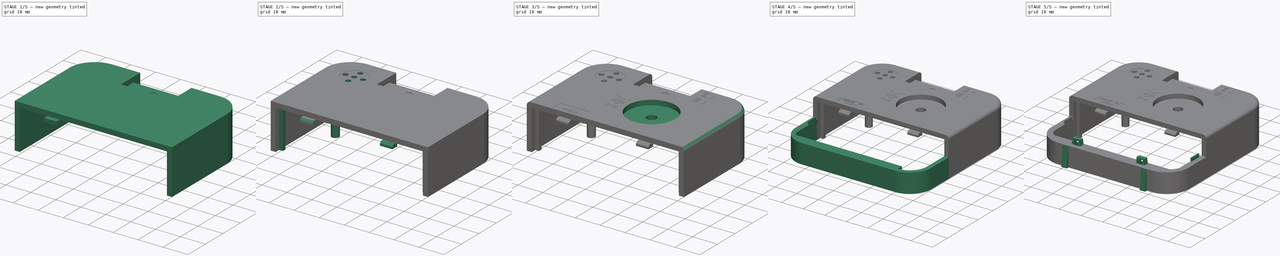
[diagram: build sequence overview — one tinted view per stage of 5, left to right]
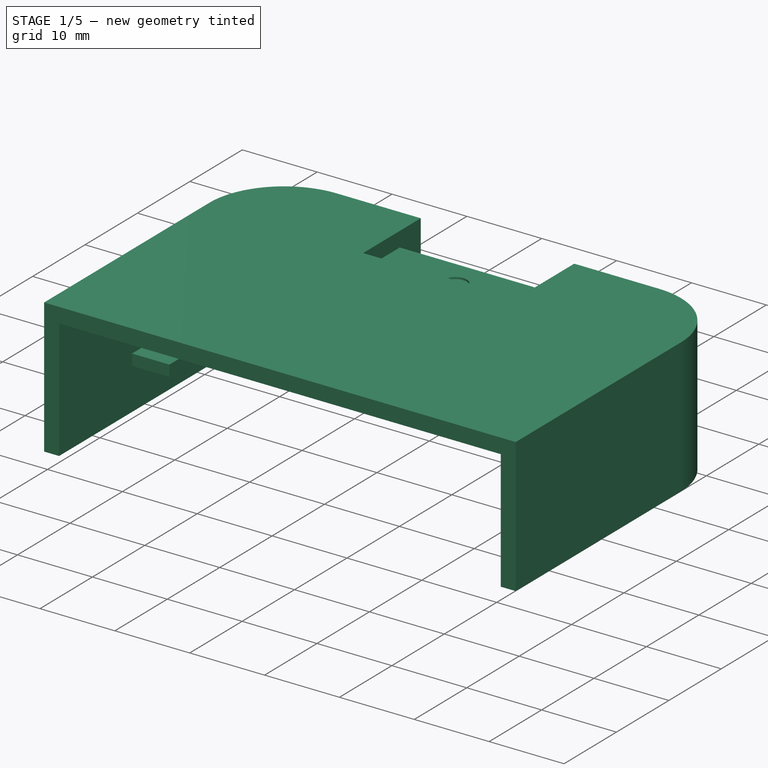
[diagram: stage 1 of 5 — iso view after this stage's code; geometry added in this stage tinted green]
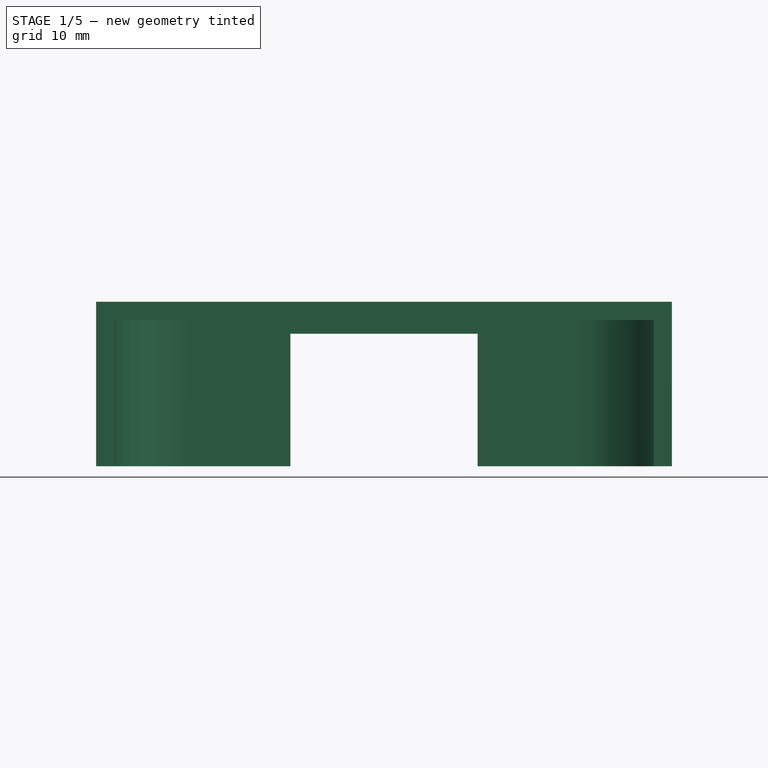
[diagram: stage 1 of 5 — front view after this stage's code; geometry added in this stage tinted green]
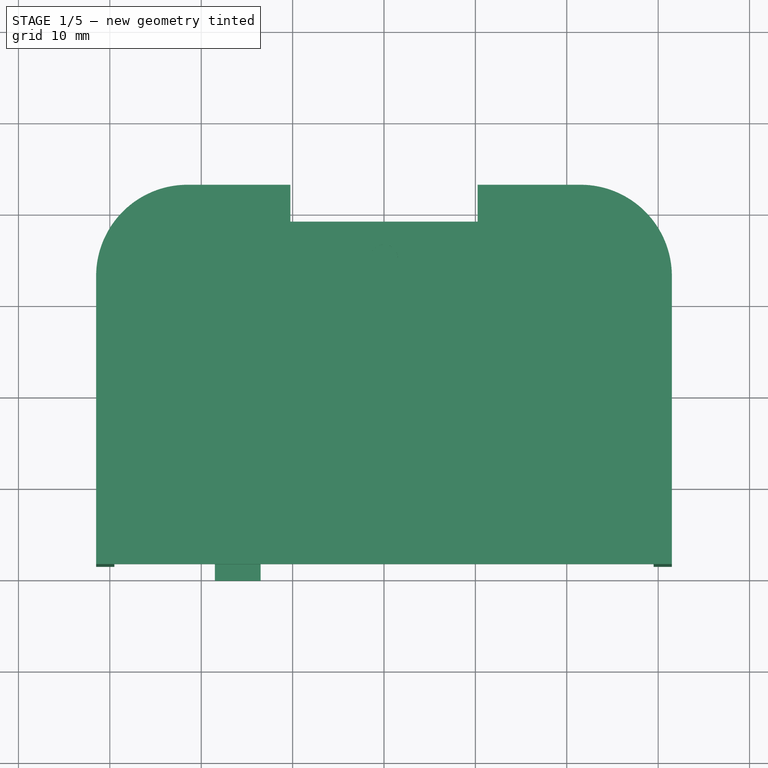
[diagram: stage 1 of 5 — top view after this stage's code; geometry added in this stage tinted green]
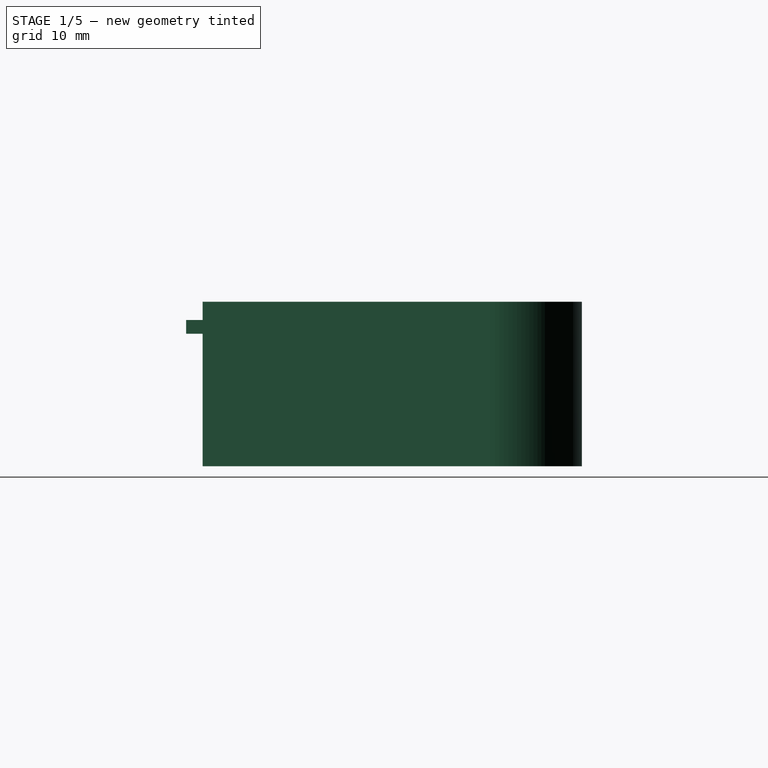
[diagram: stage 1 of 5 — right view after this stage's code; geometry added in this stage tinted green]
FCSTD DOCUMENT  (FreeCAD 0.19.4R1_voidlinux)
Label: shell_back
License: All rights reserved
LicenseURL: http://en.wikipedia.org/wiki/All_rights_reserved
objects: Sketcher::SketchObject×36, PartDesign::Pad×20, PartDesign::Pocket×12, Part::Part2DObjectPython×3, Part::Extrusion×3, PartDesign::AdditiveLoft×2, PartDesign::Fillet×2, PartDesign::Mirrored×2, PartDesign::Body×2, PartDesign::CoordinateSystem×2, Part::Thickness×1, PartDesign::FeatureBase×1, PartDesign::Chamfer×1, PartDesign::Point×1, Part::MultiFuse×1, App::Part×1
note: 126 computed .brp shape members not serialized (recipe doc carries the construction recipe); baked Part::Feature solids carry a one-line shape summary decoded from their .brp

FEATURE [PartDesign::Body] Body001  label="battery_body"
  Group = -> [Sketch,Pad,Sketch001,Pocket,Sketch002,Pad001,Sketch003,Pad002,Sketch004,Pad003,Sketch005,Pad004,Sketch006,Pad005,Sketch007,Pocket001,Sketch008,Sketch009,AdditiveLoft,Sketch010,Pocket002,Sketch011,Pad006,Sketch012,Pocket003,Sketch013,Pad007,Fillet,Mirrored]
  Origin = -> Origin002
  Tip = -> Mirrored
FEATURE [Sketcher::SketchObject] Sketch014
  FullyConstrained = true
  MapMode = 5
  sketch-geometry (6):
    g0: LineSegment StartX=-31.5 StartY=21.5 StartZ=0 EndX=-31.5 EndY=53 EndZ=0
    g1: LineSegment StartX=31.5 StartY=21.5 StartZ=0 EndX=31.5 EndY=53 EndZ=0
    g2: ArcOfCircle CenterX=-21.5 CenterY=53 CenterZ=0 NormalX=0 NormalY=0 NormalZ=1 AngleXU=0 Radius=10 StartAngle=1.5708 EndAngle=3.14159
    g3: LineSegment StartX=-21.5 StartY=63 StartZ=0 EndX=21.5 EndY=63 EndZ=0
    g4: ArcOfCircle CenterX=21.5 CenterY=53 CenterZ=0 NormalX=0 NormalY=0 NormalZ=1 AngleXU=0 Radius=10 StartAngle=6.28318 EndAngle=7.85398
    g5: LineSegment StartX=-31.5 StartY=21.5 StartZ=0 EndX=31.5 EndY=21.5 EndZ=0
  constraints (17):
    c: Vertical(g0)
    c: Symmetric(g1,g0,g-2)
    c: Symmetric(g1,g0,g-2)
    c: DistanceX(g0,g1) = 63
    c: Coincident(g2,g0)
    c: Coincident(g3,g2)
    c: Coincident(g4,g3)
    c: Coincident(g4,g1)
    c: Equal(g4,g2)
    c: Symmetric(g3,g2,g-2)
    c: Radius(g2) = 10
    c: Tangent(g3,g2)
    c: Tangent(g0,g2)
    c: DistanceY(g-1,g0) = 21.5
    c: DistanceY(g-1,g2) = 63
    c: Coincident(g5,g0)
    c: Coincident(g5,g1)
FEATURE [PartDesign::Pad] Pad008
  Direction = (1,1,1)
  Length = 18
  Length2 = 100
  Profile = -> Sketch014
  Type = 0
FEATURE [Part::Thickness] Thickness
  Faces = -> Pad008 [Face6,Face7]
  Intersection = false
  Join = 0
  Mode = 0
  SelfIntersection = false
  Value = -2
FEATURE [PartDesign::FeatureBase] BaseFeature
  BaseFeature = -> Thickness
FEATURE [Sketcher::SketchObject] Sketch015
  ExternalGeometry = -> [BaseFeature]
  FullyConstrained = true
  MapMode = 5
  Placement = pos=(0,0,18) rot=(0,0,1;0rad)
  Support = -> [BaseFeature]
  sketch-geometry (4):
    g0: LineSegment StartX=-10.25 StartY=63 StartZ=0 EndX=10.25 EndY=63 EndZ=0
    g1: LineSegment StartX=10.25 StartY=63 StartZ=0 EndX=10.25 EndY=52 EndZ=0
    g2: LineSegment StartX=10.25 StartY=52 StartZ=0 EndX=-10.25 EndY=52 EndZ=0
    g3: LineSegment StartX=-10.25 StartY=52 StartZ=0 EndX=-10.25 EndY=63 EndZ=0
  constraints (11):
    c: Coincident(g0,g1)
    c: Coincident(g1,g2)
    c: Coincident(g2,g3)
    c: Coincident(g3,g0)
    c: Horizontal(g0)
    c: Vertical(g1)
    c: Vertical(g3)
    c: PointOnObject(g0,g-3)
    c: DistanceX(g2,g2) = 20.5
    c: Symmetric(g1,g2,g-2)
    c: DistanceY(g3,g3) = 11
FEATURE [PartDesign::Pocket] Pocket004  label="top_slot"
  BaseFeature = -> BaseFeature
  Length = 5
  Length2 = 100
  Profile = -> Sketch015
  Type = 1
FEATURE [Sketcher::SketchObject] Sketch016
  ExternalGeometry = -> [Pocket004]
  FullyConstrained = true
  MapMode = 5
  Placement = pos=(0,0,16) rot=(1,0,0;3.14159rad)
  Support = -> [Pocket004]
  sketch-geometry (8):
    g0: LineSegment StartX=-11.75 StartY=-61 StartZ=0 EndX=-11.75 EndY=-50.5 EndZ=0
    g1: LineSegment StartX=-11.75 StartY=-50.5 StartZ=0 EndX=11.75 EndY=-50.5 EndZ=0
    g2: LineSegment StartX=11.75 StartY=-50.5 StartZ=0 EndX=11.75 EndY=-61 EndZ=0
    g3: LineSegment StartX=11.75 StartY=-61 StartZ=0 EndX=10.25 EndY=-61 EndZ=0
    g4: LineSegment StartX=10.25 StartY=-61 StartZ=0 EndX=10.25 EndY=-52 EndZ=0
    g5: LineSegment StartX=10.25 StartY=-52 StartZ=0 EndX=-10.25 EndY=-52 EndZ=0
    g6: LineSegment StartX=-10.25 StartY=-52 StartZ=0 EndX=-10.25 EndY=-61 EndZ=0
    g7: LineSegment StartX=-10.25 StartY=-61 StartZ=0 EndX=-11.75 EndY=-61 EndZ=0
  constraints (18):
    c: PointOnObject(g0,g-6)
    c: Vertical(g0)
    c: Coincident(g1,g0)
    c: Coincident(g2,g1)
    c: Coincident(g3,g2)
    c: Coincident(g3,g-7)
    c: Coincident(g4,g3)
    c: Coincident(g4,g-5)
    c: Coincident(g5,g4)
    c: Coincident(g5,g-4)
    c: Coincident(g6,g5)
    c: Coincident(g6,g-6)
    c: Coincident(g7,g6)
    c: Coincident(g7,g0)
    c: DistanceX(g7,g7) = 1.5
    c: Symmetric(g2,g0,g-2)
    c: Symmetric(g0,g1,g-2)
    c: DistanceY(g5,g0) = 1.5
FEATURE [PartDesign::Pad] Pad009  label="top_slot_inner_border"
  BaseFeature = -> Pocket004
  Direction = (1,1,1)
  Length = 1.5
  Length2 = 100
  Profile = -> Sketch016
  Type = 0
FEATURE [Sketcher::SketchObject] Sketch017
  ExternalGeometry = -> [Pad009]
  FullyConstrained = true
  MapMode = 5
  Placement = pos=(-10.25,0,0) rot=(0.57735,0.57735,0.57735;2.0944rad)
  Support = -> [Pad009]
  sketch-geometry (4):
    g0: LineSegment StartX=52 StartY=16 StartZ=0 EndX=59 EndY=16 EndZ=0
    g1: LineSegment StartX=59 StartY=16 StartZ=0 EndX=59 EndY=14.5 EndZ=0
    g2: LineSegment StartX=59 StartY=14.5 StartZ=0 EndX=52 EndY=14.5 EndZ=0
    g3: LineSegment StartX=52 StartY=14.5 StartZ=0 EndX=52 EndY=16 EndZ=0
  constraints (11):
    c: Coincident(g0,g1)
    c: Coincident(g1,g2)
    c: Coincident(g2,g3)
    c: Coincident(g3,g0)
    c: Horizontal(g0)
    c: Horizontal(g2)
    c: Vertical(g1)
    c: Vertical(g3)
    c: Coincident(g0,g-3)
    c: DistanceX(g0,g-3) = 2
    c: PointOnObject(g1,g-4)
FEATURE [PartDesign::Pad] Pad010  label="top_slot_inner_flat"
  BaseFeature = -> Pad009
  Direction = (1,1,1)
  Length = 10
  Length2 = 100
  Profile = -> Sketch017
  Type = 2
FEATURE [Sketcher::SketchObject] Sketch018
  ExternalGeometry = -> [Pad010]
  FullyConstrained = true
  MapMode = 5
  Placement = pos=(0,0,16) rot=(0,0,1;0rad)
  Support = -> [Pad010]
  sketch-geometry (1):
    g0: Circle CenterX=0 CenterY=55 CenterZ=0 NormalX=0 NormalY=0 NormalZ=1 AngleXU=0 Radius=1.5
  constraints (3):
    c: PointOnObject(g0,g-2)
    c: Radius(g0) = 1.5
    c: DistanceY(g-3,g0) = 3
FEATURE [PartDesign::Pocket] Pocket005  label="top_slot_round"
  BaseFeature = -> Pad010
  Length = 0.25
  Length2 = 100
  Profile = -> Sketch018
  Type = 0
FEATURE [Sketcher::SketchObject] Sketch019
  ExternalGeometry = -> [Pocket005]
  FullyConstrained = true
  MapMode = 5
  Placement = pos=(0,0,16) rot=(1,0,0;3.14159rad)
  Support = -> [Pocket005]
  sketch-geometry (4):
    g0: LineSegment StartX=-18.5 StartY=-21.5 StartZ=0 EndX=-13.5 EndY=-21.5 EndZ=0
    g1: LineSegment StartX=-13.5 StartY=-21.5 StartZ=0 EndX=-13.5 EndY=-22.5 EndZ=0
    g2: LineSegment StartX=-13.5 StartY=-22.5 StartZ=0 EndX=-18.5 EndY=-22.5 EndZ=0
    g3: LineSegment StartX=-18.5 StartY=-22.5 StartZ=0 EndX=-18.5 EndY=-21.5 EndZ=0
  constraints (12):
    c: Coincident(g0,g1)
    c: Coincident(g1,g2)
    c: Coincident(g2,g3)
    c: Coincident(g3,g0)
    c: Horizontal(g0)
    c: Horizontal(g2)
    c: Vertical(g1)
    c: Vertical(g3)
    c: PointOnObject(g0,g-4)
    c: DistanceX(g-3,g0) = 13
    c: DistanceX(g2,g2) = 5
    c: DistanceY(g3,g3) = 1
FEATURE [PartDesign::Pad] Pad011  label="left_shell_pin"
  BaseFeature = -> Pocket005
  Direction = (1,1,1)
  Length = 1.5
  Length2 = 100
  Profile = -> Sketch019
  Type = 0
FEATURE [Sketcher::SketchObject] Sketch020
  ExternalGeometry = -> [Pad011]
  FullyConstrained = true
  MapMode = 5
  Placement = pos=(0,21.5,0) rot=(1,0,0;1.5708rad)
  Support = -> [Pad011]
  sketch-geometry (4):
    g0: LineSegment StartX=-18.5 StartY=16 StartZ=0 EndX=-13.5 EndY=16 EndZ=0
    g1: LineSegment StartX=-13.5 StartY=16 StartZ=0 EndX=-13.5 EndY=14.5 EndZ=0
    g2: LineSegment StartX=-13.5 StartY=14.5 StartZ=0 EndX=-18.5 EndY=14.5 EndZ=0
    g3: LineSegment StartX=-18.5 StartY=14.5 StartZ=0 EndX=-18.5 EndY=16 EndZ=0
  constraints (10):
    c: Coincident(g0,g1)
    c: Coincident(g1,g2)
    c: Coincident(g2,g3)
    c: Coincident(g3,g0)
    c: Horizontal(g0)
    c: Horizontal(g2)
    c: Vertical(g1)
    c: Vertical(g3)
    c: Coincident(g0,g-4)
    c: Coincident(g1,g-3)
FEATURE [PartDesign::Pad] Pad012  label="left_shell_pin_extrude"
  BaseFeature = -> Pad011
  Direction = (1,1,1)
  Length = 1.8
  Length2 = 100
  Profile = -> Sketch020
  Type = 0
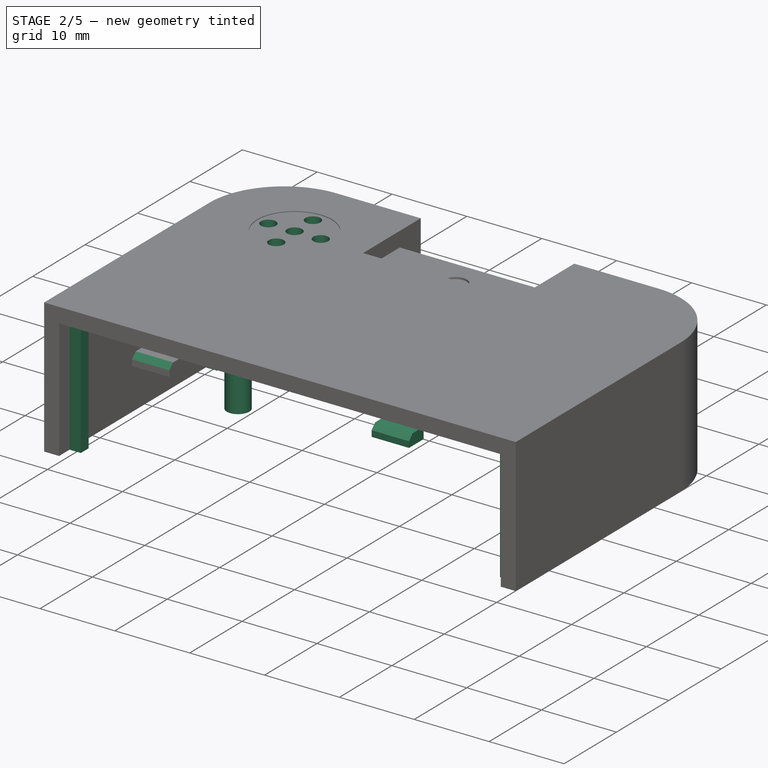
[diagram: stage 2 of 5 — iso view after this stage's code; geometry added in this stage tinted green]
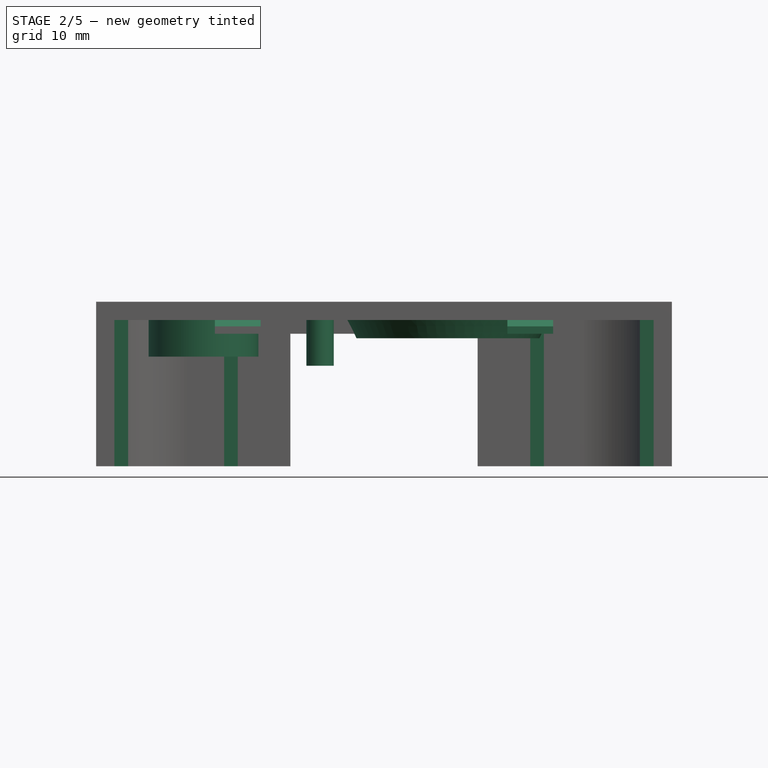
[diagram: stage 2 of 5 — front view after this stage's code; geometry added in this stage tinted green]
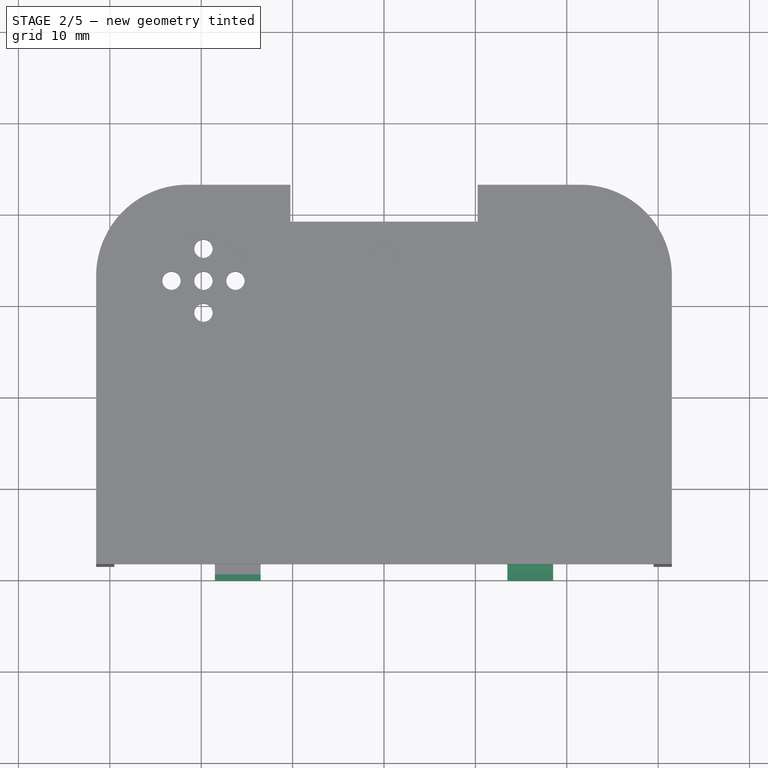
[diagram: stage 2 of 5 — top view after this stage's code; geometry added in this stage tinted green]
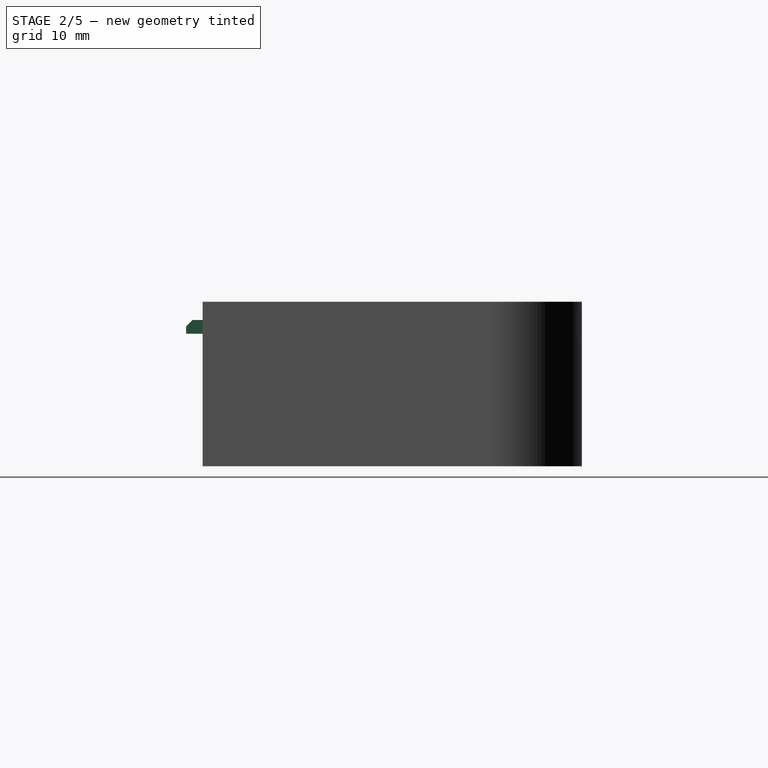
[diagram: stage 2 of 5 — right view after this stage's code; geometry added in this stage tinted green]
FEATURE [PartDesign::Chamfer] Chamfer
  Angle = 45
  Base = -> Pad012 [Edge52]
  BaseFeature = -> Pad012
  ChamferType = 0
  FlipDirection = false
  Size = 0.7
  Size2 = 1
  SupportTransform = false
FEATURE [Sketcher::SketchObject] Sketch021
  ExternalGeometry = -> [Chamfer]
  FullyConstrained = true
  MapMode = 5
  Placement = pos=(-29.5,0,0) rot=(0.57735,0.57735,0.57735;2.0944rad)
  Support = -> [Chamfer]
  sketch-geometry (8):
    g0: LineSegment StartX=23.5 StartY=16 StartZ=0 EndX=25 EndY=16 EndZ=0
    g1: LineSegment StartX=25 StartY=16 StartZ=0 EndX=25 EndY=0 EndZ=0
    g2: LineSegment StartX=25 StartY=0 StartZ=0 EndX=23.5 EndY=0 EndZ=0
    g3: LineSegment StartX=23.5 StartY=0 StartZ=0 EndX=23.5 EndY=16 EndZ=0
    g4: LineSegment StartX=49.5 StartY=16 StartZ=0 EndX=51 EndY=16 EndZ=0
    g5: LineSegment StartX=51 StartY=16 StartZ=0 EndX=51 EndY=0 EndZ=0
    g6: LineSegment StartX=51 StartY=0 StartZ=0 EndX=49.5 EndY=0 EndZ=0
    g7: LineSegment StartX=49.5 StartY=0 StartZ=0 EndX=49.5 EndY=16 EndZ=0
  constraints (24):
    c: Coincident(g0,g1)
    c: Coincident(g1,g2)
    c: Coincident(g2,g3)
    c: Coincident(g3,g0)
    c: Horizontal(g0)
    c: Horizontal(g2)
    c: Vertical(g1)
    c: Vertical(g3)
    c: PointOnObject(g0,g-3)
    c: PointOnObject(g1,g-4)
    c: DistanceX(g-3,g0) = 2
    c: DistanceX(g0,g0) = 1.5
    c: Coincident(g4,g5)
    c: Coincident(g5,g6)
    c: Coincident(g6,g7)
    c: Coincident(g7,g4)
    c: Horizontal(g4)
    c: Horizontal(g6)
    c: Vertical(g5)
    c: Vertical(g7)
    c: DistanceX(g4,g-3) = 2
    c: Equal(g4,g0)
    c: PointOnObject(g4,g-3)
    c: PointOnObject(g6,g-4)
FEATURE [PartDesign::Pad] Pad013  label="left_ridges"
  BaseFeature = -> Chamfer
  Direction = (1,1,1)
  Length = 1.5
  Length2 = 100
  Profile = -> Sketch021
  Type = 0
FEATURE [Sketcher::SketchObject] Sketch022
  ExternalGeometry = -> [Pad013]
  FullyConstrained = true
  MapMode = 5
  Placement = pos=(0,61,0) rot=(1,0,0;1.5708rad)
  Support = -> [Pad013]
  sketch-geometry (4):
    g0: LineSegment StartX=-17.5 StartY=16 StartZ=0 EndX=-16 EndY=16 EndZ=0
    g1: LineSegment StartX=-16 StartY=16 StartZ=0 EndX=-16 EndY=0 EndZ=0
    g2: LineSegment StartX=-16 StartY=0 StartZ=0 EndX=-17.5 EndY=0 EndZ=0
    g3: LineSegment StartX=-17.5 StartY=0 StartZ=0 EndX=-17.5 EndY=16 EndZ=0
  constraints (12):
    c: Coincident(g0,g1)
    c: Coincident(g1,g2)
    c: Coincident(g2,g3)
    c: Coincident(g3,g0)
    c: Horizontal(g0)
    c: Horizontal(g2)
    c: Vertical(g1)
    c: Vertical(g3)
    c: PointOnObject(g0,g-3)
    c: PointOnObject(g1,g-4)
    c: DistanceX(g0,g0) = 1.5
    c: DistanceX(g-3,g0) = 4
FEATURE [PartDesign::Pad] Pad014  label="top_ridges"
  BaseFeature = -> Pad013
  Direction = (1,1,1)
  Length = 1.5
  Length2 = 100
  Profile = -> Sketch022
  Type = 0
FEATURE [PartDesign::Mirrored] Mirrored001
  BaseFeature = -> Pad014
  MirrorPlane = -> YZ_Plane001
  Originals = -> [Pad011,Pad012,Chamfer,Pad013,Pad014]
FEATURE [Sketcher::SketchObject] Sketch023
  ExternalGeometry = -> [Mirrored001]
  FullyConstrained = true
  MapMode = 5
  Placement = pos=(0,0,18) rot=(0,0,1;0rad)
  Support = -> [Mirrored001]
  sketch-geometry (1):
    g0: Circle CenterX=-19.75 CenterY=52.5 CenterZ=0 NormalX=0 NormalY=0 NormalZ=1 AngleXU=0 Radius=5
  constraints (3):
    c: Radius(g0) = 5
    c: DistanceY(g-3,g0) = 0.5
    c: DistanceX(g0,g-3) = 9.5
FEATURE [PartDesign::Pocket] Pocket006  label="speaker_depression"
  BaseFeature = -> Mirrored001
  Length = 0.1
  Length2 = 100
  Profile = -> Sketch023
  Type = 0
FEATURE [Sketcher::SketchObject] Sketch024
  ExternalGeometry = -> [Pocket006]
  FullyConstrained = true
  MapMode = 5
  Placement = pos=(0,0,16) rot=(1,0,0;3.14159rad)
  Support = -> [Pocket006]
  sketch-geometry (4):
    g0: Circle CenterX=-19.75 CenterY=-52.5 CenterZ=0 NormalX=0 NormalY=0 NormalZ=1 AngleXU=0 Radius=5
    g1: Circle CenterX=-19.75 CenterY=-52.5 CenterZ=0 NormalX=0 NormalY=0 NormalZ=1 AngleXU=0 Radius=6
    g2: LineSegment StartX=-19.75 StartY=-52.5 StartZ=0 EndX=-19.75 EndY=-46.5 EndZ=0
    g3: GeomPoint X=-19.75 Y=-47.5 Z=0
  constraints (9):
    c: Coincident(g0,g-3)
    c: Equal(g0,g-3)
    c: Coincident(g1,g0)
    c: Coincident(g2,g0)
    c: PointOnObject(g2,g1)
    c: Vertical(g2)
    c: PointOnObject(g3,g2)
    c: PointOnObject(g3,g0)
    c: Distance(g3,g2) = 1
FEATURE [PartDesign::Pad] Pad015  label="speaker_ridge"
  BaseFeature = -> Pocket006
  Direction = (1,1,1)
  Length = 4
  Length2 = 100
  Profile = -> Sketch024
  Type = 0
FEATURE [Sketcher::SketchObject] Sketch025
  ExternalGeometry = -> [Pad015]
  FullyConstrained = true
  MapMode = 5
  Placement = pos=(0,0,17.9) rot=(0,0,1;0rad)
  Support = -> [Pad015]
  sketch-geometry (9):
    g0: Circle CenterX=-19.75 CenterY=52.5 CenterZ=0 NormalX=0 NormalY=0 NormalZ=1 AngleXU=0 Radius=1
    g1: LineSegment StartX=-19.75 StartY=52.5 StartZ=0 EndX=-19.75 EndY=56 EndZ=0
    g2: LineSegment StartX=-19.75 StartY=52.5 StartZ=0 EndX=-19.75 EndY=49 EndZ=0
    g3: LineSegment StartX=-19.75 StartY=52.5 StartZ=0 EndX=-23.25 EndY=52.5 EndZ=0
    g4: LineSegment StartX=-19.75 StartY=52.5 StartZ=0 EndX=-16.25 EndY=52.5 EndZ=0
    g5: Circle CenterX=-16.25 CenterY=52.5 CenterZ=0 NormalX=0 NormalY=0 NormalZ=1 AngleXU=0 Radius=1
    g6: Circle CenterX=-19.75 CenterY=49 CenterZ=0 NormalX=0 NormalY=0 NormalZ=1 AngleXU=0 Radius=1
    g7: Circle CenterX=-23.25 CenterY=52.5 CenterZ=0 NormalX=0 NormalY=0 NormalZ=1 AngleXU=0 Radius=1
    g8: Circle CenterX=-19.75 CenterY=56 CenterZ=0 NormalX=0 NormalY=0 NormalZ=1 AngleXU=0 Radius=1
  constraints (22):
    c: Coincident(g0,g-3)
    c: Radius(g0) = 1
    c: Coincident(g1,g0)
    c: Vertical(g1)
    c: Coincident(g2,g0)
    c: Vertical(g2)
    c: Coincident(g3,g0)
    c: Horizontal(g3)
    c: Coincident(g4,g0)
    c: Horizontal(g4)
    c: Distance(g1) = 3.5
    c: Equal(g4,g1)
    c: Equal(g3,g1)
    c: Equal(g2,g1)
    c: Coincident(g5,g4)
    c: Coincident(g6,g2)
    c: Coincident(g7,g3)
    c: Coincident(g8,g1)
    c: Equal(g5,g0)
    c: Equal(g8,g0)
    c: Equal(g7,g0)
    c: Equal(g6,g0)
FEATURE [PartDesign::Pocket] Pocket007  label="speaker_holes"
  BaseFeature = -> Pad015
  Length = 5
  Length2 = 100
  Profile = -> Sketch025
  Type = 2
FEATURE [Sketcher::SketchObject] Sketch026
  ExternalGeometry = -> [Pocket007]
  FullyConstrained = true
  MapMode = 5
  Placement = pos=(0,0,16) rot=(1,0,0;3.14159rad)
  Support = -> [Pocket007]
  sketch-geometry (3):
    g0: Circle CenterX=-7 CenterY=-23.5 CenterZ=0 NormalX=0 NormalY=0 NormalZ=1 AngleXU=0 Radius=1.5
    g1: LineSegment StartX=-7 StartY=-23.5 StartZ=0 EndX=-7 EndY=-21.5 EndZ=0
    g2: GeomPoint X=-7 Y=-22 Z=0
  constraints (8):
    c: Radius(g0) = 1.5
    c: Coincident(g1,g0)
    c: PointOnObject(g1,g-3)
    c: Vertical(g1)
    c: PointOnObject(g2,g1)
    c: PointOnObject(g2,g0)
    c: Distance(g2,g1) = 0.5
    c: DistanceX(g-4,g0) = 24.5
FEATURE [PartDesign::Pad] Pad016  label="center_pin"
  BaseFeature = -> Pocket007
  Direction = (1,1,1)
  Length = 5
  Length2 = 100
  Profile = -> Sketch026
  Type = 0
FEATURE [Sketcher::SketchObject] Sketch028  label="wheel_loft_base"
  ExternalGeometry = -> [Pad016]
  FullyConstrained = true
  MapMode = 5
  Placement = pos=(0,0,16) rot=(1,0,0;3.14159rad)
  Support = -> [Pad016]
  sketch-geometry (1):
    g0: Circle CenterX=7 CenterY=-38 CenterZ=0 NormalX=0 NormalY=0 NormalZ=1 AngleXU=0 Radius=11
  constraints (3):
    c: DistanceY(g0,g-3) = 16.5
    c: DistanceX(g0,g-3) = 24.5
    c: Radius(g0) = 11
FEATURE [Sketcher::SketchObject] Sketch029  label="wheel_loft_top"
  AttachmentOffset = pos=(0,0,2) rot=(0,0,1;0rad)
  ExternalGeometry = -> [Sketch028]
  FullyConstrained = true
  MapMode = 5
  Placement = pos=(0,0,14) rot=(1,0,0;3.14159rad)
  Support = -> [Pad016]
  sketch-geometry (3):
    g0: Circle CenterX=7 CenterY=-38 CenterZ=0 NormalX=0 NormalY=0 NormalZ=1 AngleXU=0 Radius=10
    g1: LineSegment StartX=7 StartY=-38 StartZ=0 EndX=7 EndY=-27 EndZ=0
    g2: GeomPoint X=7 Y=-28 Z=0
  constraints (7):
    c: Coincident(g0,g-3)
    c: Coincident(g1,g0)
    c: PointOnObject(g1,g-3)
    c: Vertical(g1)
    c: PointOnObject(g2,g0)
    c: PointOnObject(g2,g1)
    c: Distance(g2,g1) = 1
FEATURE [PartDesign::AdditiveLoft] AdditiveLoft001  label="wheel_loft"
  BaseFeature = -> Pad016
  Closed = false
  Profile = -> Sketch028
  Ruled = false
  Sections = -> [Sketch029]
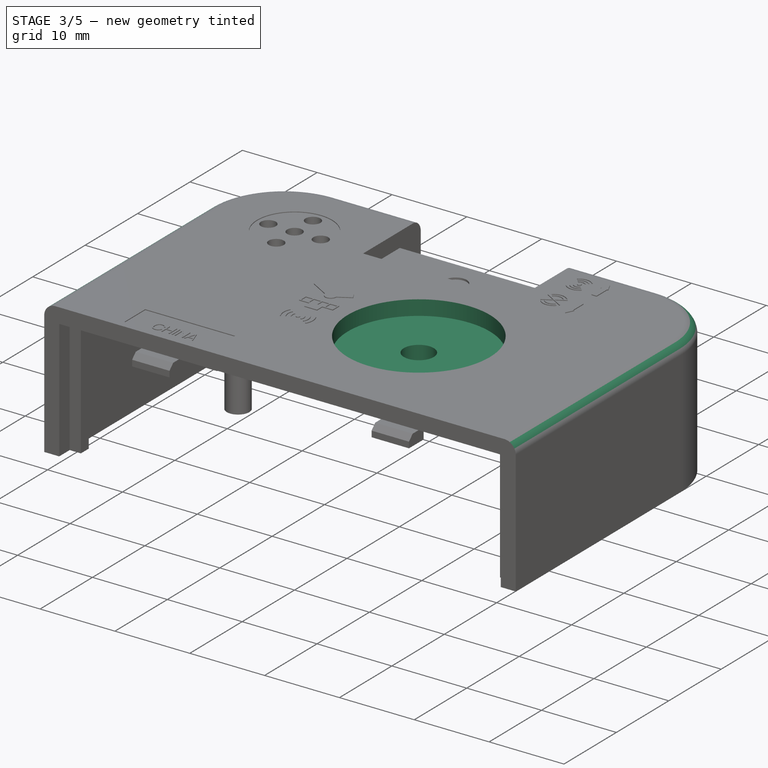
[diagram: stage 3 of 5 — iso view after this stage's code; geometry added in this stage tinted green]
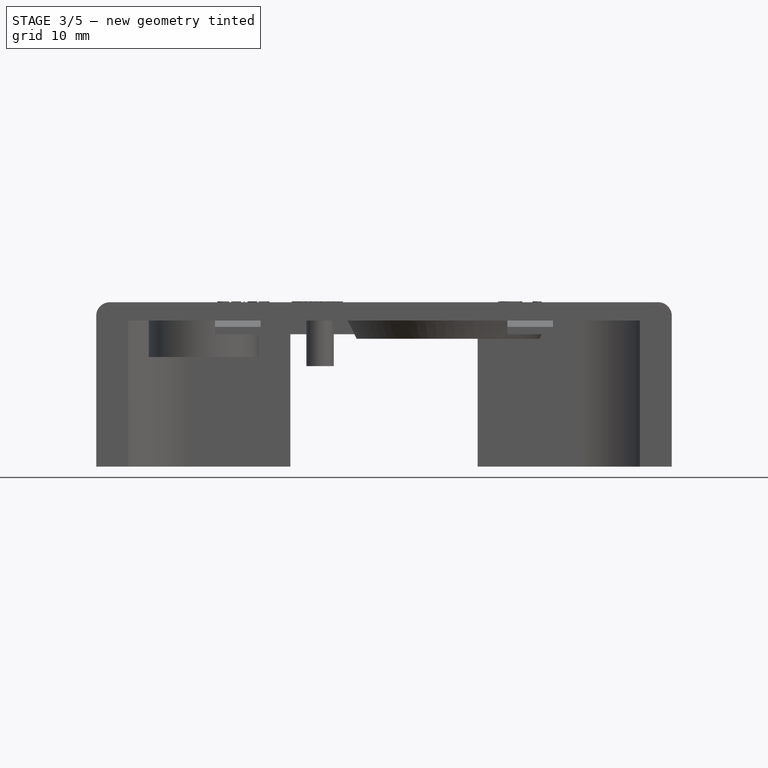
[diagram: stage 3 of 5 — front view after this stage's code; geometry added in this stage tinted green]
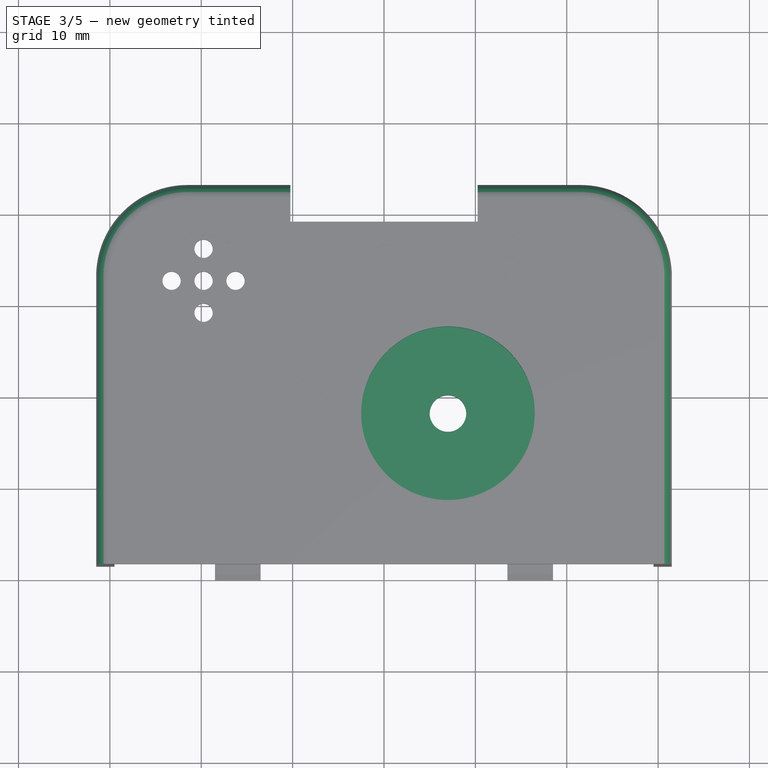
[diagram: stage 3 of 5 — top view after this stage's code; geometry added in this stage tinted green]
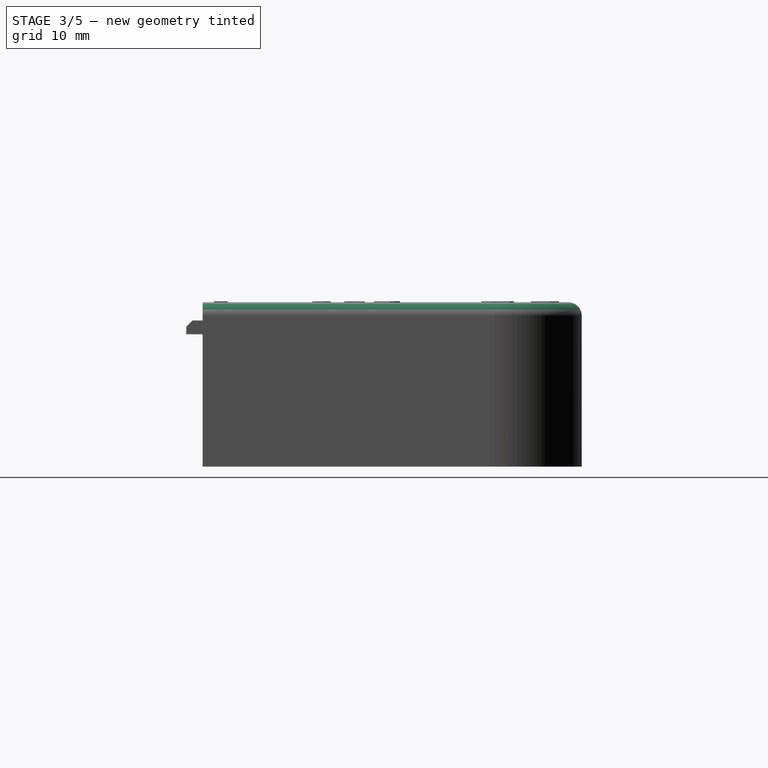
[diagram: stage 3 of 5 — right view after this stage's code; geometry added in this stage tinted green]
FEATURE [Sketcher::SketchObject] Sketch030
  ExternalGeometry = -> [AdditiveLoft001]
  FullyConstrained = true
  MapMode = 5
  Placement = pos=(0,0,18) rot=(0,0,1;0rad)
  Support = -> [AdditiveLoft001]
  sketch-geometry (1):
    g0: Circle CenterX=7 CenterY=38 CenterZ=0 NormalX=0 NormalY=0 NormalZ=1 AngleXU=0 Radius=9.5
  constraints (2):
    c: Coincident(g0,g-3)
    c: Radius(g0) = 9.5
FEATURE [PartDesign::Pocket] Pocket008  label="wheel_pocket"
  BaseFeature = -> AdditiveLoft001
  Length = 2
  Length2 = 100
  Profile = -> Sketch030
  Type = 0
FEATURE [Sketcher::SketchObject] Sketch031
  ExternalGeometry = -> [Pocket008]
  FullyConstrained = true
  MapMode = 5
  Placement = pos=(0,0,16) rot=(0,0,1;0rad)
  Support = -> [Pocket008]
  sketch-geometry (1):
    g0: Circle CenterX=7 CenterY=38 CenterZ=0 NormalX=0 NormalY=0 NormalZ=1 AngleXU=0 Radius=2
  constraints (2):
    c: Coincident(g0,g-3)
    c: Radius(g0) = 2
FEATURE [PartDesign::Pocket] Pocket009  label="wheel_hole"
  BaseFeature = -> Pocket008
  Length = 5
  Length2 = 100
  Profile = -> Sketch031
  Type = 1
FEATURE [Sketcher::SketchObject] Sketch032
  ExternalGeometry = -> [Pocket009]
  FullyConstrained = true
  MapMode = 5
  Placement = pos=(0,0,18) rot=(0,0,1;0rad)
  Support = -> [Pocket009]
  sketch-geometry (4):
    g0: LineSegment StartX=-21.5 StartY=26.5 StartZ=0 EndX=-9.5 EndY=26.5 EndZ=0
    g1: LineSegment StartX=-9.5 StartY=26.5 StartZ=0 EndX=-9.5 EndY=22.5 EndZ=0
    g2: LineSegment StartX=-9.5 StartY=22.5 StartZ=0 EndX=-21.5 EndY=22.5 EndZ=0
    g3: LineSegment StartX=-21.5 StartY=22.5 StartZ=0 EndX=-21.5 EndY=26.5 EndZ=0
  constraints (12):
    c: Coincident(g0,g1)
    c: Coincident(g1,g2)
    c: Coincident(g2,g3)
    c: Coincident(g3,g0)
    c: Horizontal(g0)
    c: Horizontal(g2)
    c: Vertical(g1)
    c: Vertical(g3)
    c: Distance(g0) = 12
    c: Distance(g1) = 4
    c: DistanceX(g-3,g2) = 10
    c: DistanceY(g-3,g2) = 1
FEATURE [PartDesign::Pocket] Pocket010  label="made_in_china_depression"
  BaseFeature = -> Pocket009
  Length = 0.1
  Length2 = 100
  Profile = -> Sketch032
  Type = 0
FEATURE [Part::Extrusion] Extrude002
  Base = -> ShapeString002
  Dir = (0,0,1)
  DirMode = 0
  FaceMakerClass = Part::FaceMakerBullseye
  LengthFwd = 0.1
  LengthRev = 0
  Solid = false
  Symmetric = false
FEATURE [Sketcher::SketchObject] Sketch033
  ExternalGeometry = -> [Pocket010]
  FullyConstrained = true
  MapMode = 5
  Placement = pos=(0,0,18) rot=(0,0,1;0rad)
  Support = -> [Pocket010]
  sketch-geometry (95):
    g0: LineSegment StartX=16.75 StartY=60.5 StartZ=0 EndX=16.25 EndY=59.5 EndZ=0
    g1: LineSegment StartX=16.25 StartY=59.5 StartZ=0 EndX=16.4 EndY=59.5 EndZ=0
    g2: LineSegment StartX=16.4 StartY=59.5 StartZ=0 EndX=16.4 EndY=57.5 EndZ=0
    g3: LineSegment StartX=16.4 StartY=57.5 StartZ=0 EndX=17.1 EndY=57.5 EndZ=0
    g4: LineSegment StartX=17.1 StartY=57.5 StartZ=0 EndX=17.1 EndY=59.5 EndZ=0
    g5: LineSegment StartX=17.1 StartY=59.5 StartZ=0 EndX=17.25 EndY=59.5 EndZ=0
    g6: LineSegment StartX=17.25 StartY=59.5 StartZ=0 EndX=16.75 EndY=60.5 EndZ=0
    g7: LineSegment StartX=16.4 StartY=57.5 StartZ=0 EndX=16.75 EndY=57.5 EndZ=0
    g8: LineSegment StartX=16.75 StartY=57.5 StartZ=0 EndX=17.1 EndY=57.5 EndZ=0
    g9: LineSegment StartX=16.75 StartY=57.5 StartZ=0 EndX=16.75 EndY=60.5 EndZ=0
    g10: LineSegment StartX=16.75 StartY=52 StartZ=0 EndX=16.25 EndY=53 EndZ=0
    g11: LineSegment StartX=16.25 StartY=53 StartZ=0 EndX=16.4 EndY=53 EndZ=0
    g12: LineSegment StartX=16.4 StartY=53 StartZ=0 EndX=16.4 EndY=55 EndZ=0
    g13: LineSegment StartX=16.4 StartY=55 StartZ=0 EndX=17.1 EndY=55 EndZ=0
    g14: LineSegment StartX=17.1 StartY=55 StartZ=0 EndX=17.1 EndY=53 EndZ=0
    g15: LineSegment StartX=17.1 StartY=53 StartZ=0 EndX=17.25 EndY=53 EndZ=0
    g16: LineSegment StartX=17.25 StartY=53 StartZ=0 EndX=16.75 EndY=52 EndZ=0
    g17: LineSegment StartX=16.4 StartY=55 StartZ=0 EndX=16.75 EndY=55 EndZ=0
    g18: LineSegment StartX=16.75 StartY=55 StartZ=0 EndX=17.1 EndY=55 EndZ=0
    g19: LineSegment StartX=16.75 StartY=55 StartZ=0 EndX=16.75 EndY=52 EndZ=0
    g20: Circle CenterX=13.8107 CenterY=58.9146 CenterZ=0 NormalX=0 NormalY=0 NormalZ=1 AngleXU=0 Radius=0.25
    g21: LineSegment StartX=13.8107 StartY=58.9146 StartZ=0 EndX=11.6893 EndY=61.0359 EndZ=0
    g22: LineSegment StartX=13.8107 StartY=58.9146 StartZ=0 EndX=15.932 EndY=61.0359 EndZ=0
    g23: ArcOfCircle CenterX=13.8107 CenterY=58.9146 CenterZ=0 NormalX=0 NormalY=0 NormalZ=1 AngleXU=0 Radius=0.6 StartAngle=0.785398 EndAngle=2.35619
    g24: ArcOfCircle CenterX=13.8107 CenterY=58.9146 CenterZ=0 NormalX=0 NormalY=0 NormalZ=1 AngleXU=0 Radius=0.7 StartAngle=0.785398 EndAngle=2.35619
    g25: ArcOfCircle CenterX=13.8107 CenterY=58.9146 CenterZ=0 NormalX=0 NormalY=0 NormalZ=1 AngleXU=0 Radius=1 StartAngle=0.785398 EndAngle=2.35619
    g26: ArcOfCircle CenterX=13.8107 CenterY=58.9146 CenterZ=0 NormalX=0 NormalY=0 NormalZ=1 AngleXU=0 Radius=1.1 StartAngle=0.785398 EndAngle=2.35619
    g27: ArcOfCircle CenterX=13.8107 CenterY=58.9146 CenterZ=0 NormalX=0 NormalY=0 NormalZ=1 AngleXU=0 Radius=1.4 StartAngle=0.785398 EndAngle=2.35619
    g28: ArcOfCircle CenterX=13.8107 CenterY=58.9146 CenterZ=0 NormalX=0 NormalY=0 NormalZ=1 AngleXU=0 Radius=1.5 StartAngle=0.785398 EndAngle=2.35619
    g29: LineSegment StartX=13.0328 StartY=59.6924 StartZ=0 EndX=13.1036 EndY=59.6217 EndZ=0
    g30: LineSegment StartX=12.75 StartY=59.9753 StartZ=0 EndX=12.8207 EndY=59.9046 EndZ=0
    g31: LineSegment StartX=13.3157 StartY=59.4096 StartZ=0 EndX=13.3864 EndY=59.3389 EndZ=0
    g32: LineSegment StartX=14.2349 StartY=59.3389 StartZ=0 EndX=14.3056 EndY=59.4096 EndZ=0
    g33: LineSegment StartX=14.5178 StartY=59.6217 StartZ=0 EndX=14.5885 EndY=59.6924 EndZ=0
    g34: LineSegment StartX=14.8006 StartY=59.9046 StartZ=0 EndX=14.8713 EndY=59.9753 EndZ=0
    g35: LineSegment StartX=13.8107 StartY=58.9146 StartZ=0 EndX=11.6893 EndY=56.7933 EndZ=0
    g36: LineSegment StartX=13.8107 StartY=58.9146 StartZ=0 EndX=15.932 EndY=56.7933 EndZ=0
    g37: ArcOfCircle CenterX=13.8107 CenterY=58.9146 CenterZ=0 NormalX=0 NormalY=0 NormalZ=1 AngleXU=0 Radius=0.6 StartAngle=3.92699 EndAngle=5.49779
    g38: ArcOfCircle CenterX=13.8107 CenterY=58.9146 CenterZ=0 NormalX=0 NormalY=0 NormalZ=1 AngleXU=0 Radius=0.7 StartAngle=3.92699 EndAngle=5.49779
    g39: ArcOfCircle CenterX=13.8107 CenterY=58.9146 CenterZ=0 NormalX=0 NormalY=0 NormalZ=1 AngleXU=0 Radius=1 StartAngle=3.92699 EndAngle=5.49779
    g40: ArcOfCircle CenterX=13.8107 CenterY=58.9146 CenterZ=0 NormalX=0 NormalY=0 NormalZ=1 AngleXU=0 Radius=1.1 StartAngle=3.92699 EndAngle=5.49779
    g41: ArcOfCircle CenterX=13.8107 CenterY=58.9146 CenterZ=0 NormalX=0 NormalY=0 NormalZ=1 AngleXU=0 Radius=1.4 StartAngle=3.92699 EndAngle=5.49779
    g42: ArcOfCircle CenterX=13.8107 CenterY=58.9146 CenterZ=0 NormalX=0 NormalY=0 NormalZ=1 AngleXU=0 Radius=1.5 StartAngle=3.92699 EndAngle=5.49779
    g43: LineSegment StartX=13.3864 StartY=58.4904 StartZ=0 EndX=13.3157 EndY=58.4196 EndZ=0
    g44: LineSegment StartX=13.1036 StartY=58.2075 StartZ=0 EndX=13.0328 EndY=58.1368 EndZ=0
    g45: LineSegment StartX=12.8207 StartY=57.9247 StartZ=0 EndX=12.75 EndY=57.854 EndZ=0
    g46: LineSegment StartX=14.8713 StartY=57.854 StartZ=0 EndX=14.8006 EndY=57.9247 EndZ=0
    g47: LineSegment StartX=14.5885 StartY=58.1368 StartZ=0 EndX=14.5178 EndY=58.2075 EndZ=0
    g48: LineSegment StartX=14.3056 StartY=58.4196 StartZ=0 EndX=14.2349 EndY=58.4904 EndZ=0
    g49: LineSegment StartX=11.6893 StartY=56.182 StartZ=0 EndX=15.932 EndY=51.9393 EndZ=0
    g50: LineSegment StartX=11.6893 StartY=51.9393 StartZ=0 EndX=15.932 EndY=56.182 EndZ=0
    g51: GeomPoint X=13.8107 Y=54.0607 Z=0
    g52: LineSegment StartX=11.6893 StartY=56.182 StartZ=0 EndX=11.6893 EndY=51.9393 EndZ=0
    g53: LineSegment StartX=11.6893 StartY=56.182 StartZ=0 EndX=15.932 EndY=56.182 EndZ=0
    g54: ArcOfCircle CenterX=13.8107 CenterY=54.0607 CenterZ=0 NormalX=0 NormalY=0 NormalZ=1 AngleXU=0 Radius=1 StartAngle=0.785398 EndAngle=2.35619
    g55: ArcOfCircle CenterX=13.8107 CenterY=54.0607 CenterZ=0 NormalX=0 NormalY=0 NormalZ=1 AngleXU=0 Radius=1.1 StartAngle=0.785398 EndAngle=2.35619
    g56: ArcOfCircle CenterX=13.8107 CenterY=54.0607 CenterZ=0 NormalX=0 NormalY=0 NormalZ=1 AngleXU=0 Radius=1.4 StartAngle=0.785398 EndAngle=2.35619
    g57: ArcOfCircle CenterX=13.8107 CenterY=54.0607 CenterZ=0 NormalX=0 NormalY=0 NormalZ=1 AngleXU=0 Radius=1.5 StartAngle=0.785398 EndAngle=2.35619
    g58: ArcOfCircle CenterX=13.8107 CenterY=54.0607 CenterZ=0 NormalX=0 NormalY=0 NormalZ=1 AngleXU=0 Radius=1 StartAngle=3.92699 EndAngle=5.49779
    g59: ArcOfCircle CenterX=13.8107 CenterY=54.0607 CenterZ=0 NormalX=0 NormalY=0 NormalZ=1 AngleXU=0 Radius=1.1 StartAngle=3.92699 EndAngle=5.49779
    g60: ArcOfCircle CenterX=13.8107 CenterY=54.0607 CenterZ=0 NormalX=0 NormalY=0 NormalZ=1 AngleXU=0 Radius=1.4 StartAngle=3.92699 EndAngle=5.49779
    g61: ArcOfCircle CenterX=13.8107 CenterY=54.0607 CenterZ=0 NormalX=0 NormalY=0 NormalZ=1 AngleXU=0 Radius=1.5 StartAngle=3.92699 EndAngle=5.49779
    g62: LineSegment StartX=13.1036 StartY=54.7678 StartZ=0 EndX=13.0328 EndY=54.8385 EndZ=0
    g63: LineSegment StartX=12.8207 StartY=55.0506 StartZ=0 EndX=12.75 EndY=55.1213 EndZ=0
    g64: LineSegment StartX=14.8713 StartY=55.1213 StartZ=0 EndX=14.8006 EndY=55.0506 EndZ=0
    g65: LineSegment StartX=14.5885 StartY=54.8385 StartZ=0 EndX=14.5178 EndY=54.7678 EndZ=0
    g66: LineSegment StartX=13.1036 StartY=53.3536 StartZ=0 EndX=13.0328 EndY=53.2828 EndZ=0
    g67: LineSegment StartX=12.8207 StartY=53.0707 StartZ=0 EndX=12.75 EndY=53 EndZ=0
    g68: LineSegment StartX=14.5178 StartY=53.3536 StartZ=0 EndX=14.5885 EndY=53.2828 EndZ=0
    g69: LineSegment StartX=14.8006 StartY=53.0707 StartZ=0 EndX=14.8713 EndY=53 EndZ=0
    g70: LineSegment StartX=13.8107 StartY=54.0607 StartZ=0 EndX=15.1097 EndY=54.8107 EndZ=0
    g71: LineSegment StartX=13.8107 StartY=54.0607 StartZ=0 EndX=15.1097 EndY=53.3107 EndZ=0
    g72: LineSegment StartX=13.8107 StartY=54.0607 StartZ=0 EndX=12.5116 EndY=53.3107 EndZ=0
    g73: LineSegment StartX=13.8107 StartY=54.0607 StartZ=0 EndX=12.5116 EndY=54.8107 EndZ=0
    g74: LineSegment StartX=15.0847 StartY=54.854 StartZ=0 EndX=15.1347 EndY=54.7674 EndZ=0
    g75: LineSegment StartX=12.4866 StartY=53.354 StartZ=0 EndX=12.5366 EndY=53.2674 EndZ=0
    g76: LineSegment StartX=12.4866 StartY=54.7674 StartZ=0 EndX=12.5366 EndY=54.854 EndZ=0
    g77: LineSegment StartX=15.1347 StartY=53.354 StartZ=0 EndX=15.0847 EndY=53.2674 EndZ=0
    g78: LineSegment StartX=13.8107 StartY=54.0607 StartZ=0 EndX=13.8107 EndY=58.9146 EndZ=0
    g79: LineSegment StartX=12.5366 StartY=54.854 StartZ=0 EndX=15.1347 EndY=53.354 EndZ=0
    g80: LineSegment StartX=15.0847 StartY=53.2674 StartZ=0 EndX=12.4866 EndY=54.7674 EndZ=0
    g81: LineSegment StartX=12.4866 StartY=53.354 StartZ=0 EndX=15.0847 EndY=54.854 EndZ=0
    g82: LineSegment StartX=15.1347 StartY=54.7674 StartZ=0 EndX=12.5366 EndY=53.2674 EndZ=0
    g83: GeomPoint X=13.8107 Y=54.1184 Z=0
    g84: GeomPoint X=13.9107 Y=54.0607 Z=0
    g85: GeomPoint X=13.8107 Y=54.0029 Z=0
    g86: GeomPoint X=13.7107 Y=54.0607 Z=0
    g87: LineSegment StartX=12.4866 StartY=53.354 StartZ=0 EndX=13.7107 EndY=54.0607 EndZ=0
    g88: LineSegment StartX=13.7107 StartY=54.0607 StartZ=0 EndX=12.4866 EndY=54.7674 EndZ=0
    g89: LineSegment StartX=12.5366 StartY=54.854 StartZ=0 EndX=13.8107 EndY=54.1184 EndZ=0
    g90: LineSegment StartX=13.8107 StartY=54.1184 StartZ=0 EndX=15.0847 EndY=54.854 EndZ=0
    g91: LineSegment StartX=15.1347 StartY=54.7674 StartZ=0 EndX=13.9107 EndY=54.0607 EndZ=0
    g92: LineSegment StartX=13.9107 StartY=54.0607 StartZ=0 EndX=15.1347 EndY=53.354 EndZ=0
    g93: LineSegment StartX=15.0847 StartY=53.2674 StartZ=0 EndX=13.8107 EndY=54.0029 EndZ=0
    g94: LineSegment StartX=13.8107 StartY=54.0029 StartZ=0 EndX=12.5366 EndY=53.2674 EndZ=0
  constraints (261):
    c: Coincident(g1,g0)
    c: Horizontal(g1)
    c: Coincident(g2,g1)
    c: Vertical(g2)
    c: Coincident(g3,g2)
    c: Horizontal(g3)
    c: Coincident(g4,g3)
    c: Vertical(g4)
    c: Coincident(g5,g4)
    c: Horizontal(g5)
    c: Coincident(g6,g5)
    c: Coincident(g6,g0)
    c: Equal(g1,g5)
    c: PointOnObject(g1,g5)
    c: DistanceY(g0,g0) = 1
    c: DistanceY(g2,g0) = 3
    c: DistanceX(g0,g5) = 1
    c: DistanceX(g2,g3) = 0.7
    c: Coincident(g7,g2)
    c: Coincident(g8,g7)
    c: Coincident(g8,g3)
    c: Equal(g8,g7)
    c: PointOnObject(g7,g3)
    c: Coincident(g9,g7)
    c: Vertical(g9)
    c: Coincident(g9,g0)
    c: Coincident(g11,g10)
    c: Horizontal(g11)
    c: Coincident(g12,g11)
    c: Vertical(g12)
    c: Coincident(g13,g12)
    c: Horizontal(g13)
    c: Coincident(g14,g13)
    c: Vertical(g14)
    c: Coincident(g15,g14)
    c: Horizontal(g15)
    c: Coincident(g16,g15)
    c: Coincident(g16,g10)
    c: Equal(g11,g15)
    c: PointOnObject(g11,g15)
    c: Equal(g0,g10) = 1
    c: DistanceY(g12,g10) = -3
    c: DistanceX(g10,g15) = 1
    c: DistanceX(g12,g13) = 0.7
    c: Coincident(g17,g12)
    c: Coincident(g18,g17)
    c: Coincident(g18,g13)
    c: Equal(g18,g17)
    c: PointOnObject(g17,g13)
    c: Coincident(g19,g17)
    c: Vertical(g19)
    c: Coincident(g19,g10)
    c: PointOnObject(g12,g2)
    c: DistanceY(g13,g3) = 2.5
    c: DistanceX(g-3,g0) = 6
    c: DistanceY(g0,g-3) = 2.5
    c: Radius(g20) = 0.25
    c: Coincident(g21,g20)
    c: Coincident(g22,g20)
    c: Perpendicular(g21,g22)
    c: Equal(g22,g21)
    c: Distance(g21) = 3
    c: Angle(g-2,g21) = 0.785398
    c: Coincident(g23,g20)
    c: PointOnObject(g23,g21)
    c: PointOnObject(g23,g22)
    c: Coincident(g24,g20)
    c: PointOnObject(g24,g21)
    c: PointOnObject(g24,g22)
    c: Distance(g23,g24) = 0.1
    c: Coincident(g25,g20)
    c: PointOnObject(g25,g21)
    c: PointOnObject(g25,g22)
    c: Coincident(g26,g20)
    c: PointOnObject(g26,g21)
    c: PointOnObject(g26,g22)
    c: Coincident(g27,g20)
    c: PointOnObject(g27,g21)
    c: PointOnObject(g27,g22)
    c: Coincident(g28,g20)
    c: PointOnObject(g28,g21)
    c: PointOnObject(g28,g22)
    c: Distance(g25,g26) = 0.1
    c: Distance(g27,g28) = 0.1
    c: Distance(g20,g28) = 1.5
    c: Coincident(g29,g26)
    c: Coincident(g29,g25)
    c: Coincident(g30,g28)
    c: Coincident(g30,g27)
    c: Coincident(g31,g24)
    c: Coincident(g31,g23)
    c: Coincident(g32,g23)
    c: Coincident(g32,g24)
    c: Coincident(g33,g25)
    c: Coincident(g33,g26)
    c: Coincident(g34,g27)
    c: Coincident(g34,g28)
    c: Distance(g27,g26) = 0.3
    c: Distance(g25,g24) = 0.3
    c: Coincident(g35,g20)
    c: Coincident(g36,g20)
    c: Parallel(g36,g21)
    c: Parallel(g35,g22)
    c: Equal(g36,g21)
    c: Equal(g35,g21)
    c: Coincident(g37,g20)
    c: PointOnObject(g37,g35)
    c: PointOnObject(g37,g36)
    c: Coincident(g38,g20)
    c: PointOnObject(g38,g35)
    c: PointOnObject(g38,g36)
    c: Coincident(g39,g20)
    c: PointOnObject(g39,g35)
    c: PointOnObject(g39,g36)
    c: Coincident(g40,g20)
    c: PointOnObject(g40,g35)
    c: PointOnObject(g40,g36)
    c: Coincident(g41,g20)
    c: PointOnObject(g41,g35)
    c: PointOnObject(g41,g36)
    c: Coincident(g42,g20)
    c: PointOnObject(g42,g35)
    c: PointOnObject(g42,g36)
    c: Coincident(g43,g37)
    c: Coincident(g43,g38)
    c: Coincident(g44,g39)
    c: Coincident(g44,g40)
    c: Coincident(g45,g41)
    c: Coincident(g45,g42)
    c: Coincident(g46,g42)
    c: Coincident(g46,g41)
    c: Coincident(g47,g40)
    c: Coincident(g47,g39)
    c: Coincident(g48,g38)
    c: Coincident(g48,g37)
    c: Equal(g43,g31)
    c: Equal(g44,g43)
    c: Equal(g45,g43)
    c: Distance(g42,g20) = 1.5
    c: Distance(g41,g40) = 0.3
    c: Distance(g38,g39) = 0.3
    c: Angle(g-2,g49) = 0.785398
    c: Perpendicular(g49,g50)
    c: Equal(g49,g50)
    c: Distance(g49) = 6
    c: PointOnObject(g51,g49)
    c: PointOnObject(g51,g50)
    c: Coincident(g52,g49)
    c: Coincident(g52,g50)
    c: Vertical(g52)
    c: Coincident(g53,g49)
    c: Coincident(g53,g50)
    c: Horizontal(g53)
    c: Coincident(g54,g51)
    c: PointOnObject(g54,g49)
    c: PointOnObject(g54,g50)
    c: Coincident(g55,g54)
    c: PointOnObject(g55,g49)
    c: PointOnObject(g55,g50)
    c: Coincident(g56,g54)
    c: PointOnObject(g56,g49)
    c: PointOnObject(g56,g50)
    c: Coincident(g57,g54)
    c: PointOnObject(g57,g49)
    c: PointOnObject(g57,g50)
    c: Coincident(g58,g54)
    c: PointOnObject(g58,g50)
    c: PointOnObject(g58,g49)
    c: Coincident(g59,g54)
    c: PointOnObject(g59,g50)
    c: PointOnObject(g59,g49)
    c: Coincident(g60,g54)
    c: PointOnObject(g60,g50)
    c: PointOnObject(g60,g49)
    c: Coincident(g61,g54)
    c: PointOnObject(g61,g50)
    c: PointOnObject(g61,g49)
    c: Coincident(g62,g54)
    c: Coincident(g62,g55)
    c: Coincident(g63,g56)
    c: Coincident(g63,g57)
    c: Coincident(g64,g57)
    c: Coincident(g64,g56)
    c: Coincident(g65,g55)
    c: Coincident(g65,g54)
    c: Coincident(g66,g58)
    c: Coincident(g66,g59)
    c: Coincident(g67,g60)
    c: Coincident(g67,g61)
    c: Coincident(g68,g58)
    c: Coincident(g68,g59)
    c: Coincident(g69,g60)
    c: Coincident(g69,g61)
    c: Equal(g63,g45)
    c: Equal(g62,g63)
    c: Equal(g66,g63)
    c: Equal(g67,g63)
    c: Distance(g57,g54) = 1.5
    c: Distance(g54,g61) = 1.5
    c: Distance(g60,g59) = 0.3
    c: Distance(g56,g55) = 0.3
    c: Coincident(g70,g54)
    c: Coincident(g71,g54)
    c: Angle(g-2,g70) = 2.0944
    c: Coincident(g72,g54)
    c: Parallel(g70,g72)
    c: Angle(g-2,g71) = 1.0472
    c: Coincident(g73,g54)
    c: Parallel(g71,g73)
    c: Equal(g71,g73)
    c: Equal(g72,g73)
    c: Equal(g70,g71)
    c: Distance(g54,g73) = 1.5
    c: PointOnObject(g70,g74)
    c: Symmetric(g74,g74,g70)
    c: Symmetric(g75,g74,g54)
    c: Symmetric(g75,g74,g54)
    c: Distance(g74,g74) = 0.1
    c: Symmetric(g76,g76,g73)
    c: Perpendicular(g73,g76)
    c: Distance(g76,g76) = 0.1
    c: Symmetric(g77,g76,g54)
    c: Symmetric(g76,g77,g54)
    c: DistanceY(g74,g42) = 3
    c: Coincident(g78,g54)
    c: Coincident(g78,g20)
    c: Vertical(g78)
    c: DistanceY(g-3,g61) = 1
    c: DistanceX(g-3,g61) = 2.5
    c: Coincident(g79,g76)
    c: Coincident(g79,g77)
    c: Coincident(g80,g77)
    c: Coincident(g80,g76)
    c: Coincident(g81,g75)
    c: Coincident(g81,g74)
    c: Coincident(g82,g74)
    c: Coincident(g82,g75)
    c: PointOnObject(g83,g81)
    c: PointOnObject(g83,g79)
    c: PointOnObject(g84,g82)
    c: PointOnObject(g84,g79)
    c: PointOnObject(g85,g80)
    c: PointOnObject(g85,g82)
    c: PointOnObject(g86,g81)
    c: PointOnObject(g86,g80)
    c: Coincident(g87,g75)
    c: Coincident(g87,g86)
    c: Coincident(g88,g87)
    c: Coincident(g88,g76)
    c: Coincident(g89,g76)
    c: Coincident(g89,g83)
    c: Coincident(g90,g89)
    c: Coincident(g90,g74)
    c: Coincident(g91,g74)
    c: Coincident(g91,g84)
    c: Coincident(g92,g91)
    c: Coincident(g92,g77)
    c: Coincident(g93,g77)
    c: Coincident(g93,g85)
    c: Coincident(g94,g93)
    c: Coincident(g94,g75)
FEATURE [PartDesign::Pad] Pad017  label="alarm_markings"
  BaseFeature = -> Pocket010
  Direction = (1,1,1)
  Length = 0.1
  Length2 = 100
  Profile = -> Sketch033
  Type = 0
FEATURE [Sketcher::SketchObject] Sketch034
  ExternalGeometry = -> [Pad017]
  FullyConstrained = true
  MapMode = 5
  Placement = pos=(0,0,18) rot=(0,0,1;0rad)
  Support = -> [Pad017]
  sketch-geometry (47):
    g0: Circle CenterX=-6.86506 CenterY=40.9875 CenterZ=0 NormalX=0 NormalY=0 NormalZ=1 AngleXU=0 Radius=0.75
    g1: LineSegment StartX=-6.86506 StartY=40.9875 StartZ=0 EndX=-4.7 EndY=42.2375 EndZ=0
    g2: LineSegment StartX=-6.86506 StartY=40.9875 StartZ=0 EndX=-9.89615 EndY=42.7375 EndZ=0
    g3: LineSegment StartX=-4.9 StartY=42.5839 StartZ=0 EndX=-4.5 EndY=41.8911 EndZ=0
    g4: LineSegment StartX=-4.9 StartY=42.5839 StartZ=0 EndX=-6.51563 EndY=41.6511 EndZ=0
    g5: LineSegment StartX=-4.5 StartY=41.8911 StartZ=0 EndX=-6.11563 EndY=40.9583 EndZ=0
    g6: LineSegment StartX=-10.0962 StartY=42.3911 StartZ=0 EndX=-9.69615 EndY=43.0839 EndZ=0
    g7: LineSegment StartX=-9.69615 StartY=43.0839 StartZ=0 EndX=-7.2145 EndY=41.6511 EndZ=0
    g8: LineSegment StartX=-10.0962 StartY=42.3911 StartZ=0 EndX=-7.6145 EndY=40.9583 EndZ=0
    g9: ArcOfCircle CenterX=-6.86506 CenterY=40.9875 CenterZ=0 NormalX=0 NormalY=0 NormalZ=1 AngleXU=0 Radius=0.75 StartAngle=1.08614 EndAngle=2.05546
    g10: ArcOfCircle CenterX=-6.86506 CenterY=40.9875 CenterZ=0 NormalX=0 NormalY=0 NormalZ=1 AngleXU=0 Radius=0.75 StartAngle=3.18053 EndAngle=6.24425
    g11: LineSegment StartX=-7.6 StartY=37 StartZ=0 EndX=-5.9 EndY=37 EndZ=0
    g12: LineSegment StartX=-5.9 StartY=37 StartZ=0 EndX=-5.9 EndY=38 EndZ=0
    g13: LineSegment StartX=-7.6 StartY=38 StartZ=0 EndX=-7.6 EndY=37 EndZ=0
    g14: LineSegment StartX=-7.6 StartY=38 StartZ=0 EndX=-9 EndY=38 EndZ=0
    g15: LineSegment StartX=-5.9 StartY=38 StartZ=0 EndX=-4.5 EndY=38 EndZ=0
    g16: LineSegment StartX=-6.825 StartY=38.15 StartZ=0 EndX=-6.825 EndY=39.0875 EndZ=0
    g17: LineSegment StartX=-6.675 StartY=38.15 StartZ=0 EndX=-6.675 EndY=39.0875 EndZ=0
    g18: LineSegment StartX=-5.7375 StartY=38.15 StartZ=0 EndX=-5.7375 EndY=39.0875 EndZ=0
    g19: LineSegment StartX=-5.5875 StartY=38.15 StartZ=0 EndX=-5.5875 EndY=39.0875 EndZ=0
    g20: LineSegment StartX=-4.5 StartY=38 StartZ=0 EndX=-4.5 EndY=39.2375 EndZ=0
    g21: LineSegment StartX=-4.65 StartY=38.15 StartZ=0 EndX=-4.65 EndY=39.0875 EndZ=0
    g22: LineSegment StartX=-9 StartY=38 StartZ=0 EndX=-9 EndY=39.2375 EndZ=0
    g23: LineSegment StartX=-8.85 StartY=38.15 StartZ=0 EndX=-8.85 EndY=39.0875 EndZ=0
    g24: LineSegment StartX=-7.9125 StartY=38.15 StartZ=0 EndX=-7.9125 EndY=39.0875 EndZ=0
    g25: LineSegment StartX=-7.7625 StartY=38.15 StartZ=0 EndX=-7.7625 EndY=39.0875 EndZ=0
    g26: LineSegment StartX=-9 StartY=39.2375 StartZ=0 EndX=-4.5 EndY=39.2375 EndZ=0
    g27: LineSegment StartX=-8.85 StartY=39.0875 StartZ=0 EndX=-7.9125 EndY=39.0875 EndZ=0
    g28: LineSegment StartX=-7.7625 StartY=39.0875 StartZ=0 EndX=-6.825 EndY=39.0875 EndZ=0
    g29: LineSegment StartX=-6.675 StartY=39.0875 StartZ=0 EndX=-5.7375 EndY=39.0875 EndZ=0
    g30: LineSegment StartX=-5.5875 StartY=39.0875 StartZ=0 EndX=-4.65 EndY=39.0875 EndZ=0
    g31: LineSegment StartX=-8.85 StartY=38.15 StartZ=0 EndX=-7.9125 EndY=38.15 EndZ=0
    g32: LineSegment StartX=-7.7625 StartY=38.15 StartZ=0 EndX=-6.825 EndY=38.15 EndZ=0
    g33: LineSegment StartX=-6.675 StartY=38.15 StartZ=0 EndX=-5.7375 EndY=38.15 EndZ=0
    g34: LineSegment StartX=-5.5875 StartY=38.15 StartZ=0 EndX=-4.65 EndY=38.15 EndZ=0
    g35: LineSegment StartX=-8.85 StartY=39.0875 StartZ=0 EndX=-8.85 EndY=39.2375 EndZ=0
    g36: LineSegment StartX=-8.85 StartY=39.0875 StartZ=0 EndX=-9 EndY=39.0875 EndZ=0
    g37: LineSegment StartX=-8.85 StartY=38.15 StartZ=0 EndX=-8.85 EndY=38 EndZ=0
    g38: LineSegment StartX=-7.6 StartY=37 StartZ=0 EndX=-6.75 EndY=37 EndZ=0
    g39: LineSegment StartX=-6.75 StartY=37 StartZ=0 EndX=-5.9 EndY=37 EndZ=0
    g40: LineSegment StartX=-6.75 StartY=37 StartZ=0 EndX=-6.75 EndY=39.2375 EndZ=0
    g41: LineSegment StartX=-7.9125 StartY=38.15 StartZ=0 EndX=-7.7625 EndY=38.15 EndZ=0
    g42: LineSegment StartX=-5.7375 StartY=38.15 StartZ=0 EndX=-5.5875 EndY=38.15 EndZ=0
    g43: LineSegment StartX=-6.825 StartY=38.15 StartZ=0 EndX=-6.675 EndY=38.15 EndZ=0
    g44: LineSegment StartX=-2.5 StartY=40.9875 StartZ=0 EndX=-2.5 EndY=37 EndZ=0
    g45: GeomPoint X=-2.5 Y=38 Z=0
    g46: LineSegment StartX=-2.5 StartY=38 StartZ=0 EndX=-4.5 EndY=38 EndZ=0
  constraints (131):
    c: Radius(g0) = 0.75
    c: Coincident(g1,g0)
    c: Coincident(g2,g0)
    c: Angle(g1,g2) = 2.0944
    c: Angle(g2,g-2) = 2.0944
    c: Distance(g1) = 2.5
    c: Distance(g2) = 3.5
    c: Coincident(g4,g3)
    c: PointOnObject(g4,g0)
    c: Coincident(g5,g3)
    c: PointOnObject(g5,g0)
    c: Symmetric(g3,g3,g1)
    c: Perpendicular(g3,g5)
    c: Perpendicular(g3,g4)
    c: PointOnObject(g1,g3)
    c: Distance(g3) = 0.8
    c: Coincident(g7,g6)
    c: Coincident(g8,g6)
    c: Symmetric(g6,g6,g2)
    c: PointOnObject(g2,g6)
    c: Perpendicular(g6,g7)
    c: Perpendicular(g8,g6)
    c: Equal(g6,g3)
    c: Coincident(g9,g0)
    c: Coincident(g9,g7)
    c: Coincident(g9,g4)
    c: Coincident(g10,g9)
    c: Coincident(g10,g5)
    c: Coincident(g10,g8)
    c: Coincident(g11,g12)
    c: Coincident(g13,g11)
    c: Horizontal(g11)
    c: Vertical(g12)
    c: Vertical(g13)
    c: Distance(g11) = 1.7
    c: Distance(g13) = 1
    c: Coincident(g14,g13)
    c: Horizontal(g14)
    c: Coincident(g15,g12)
    c: Horizontal(g15)
    c: Distance(g15,g14) = 4.5
    c: Equal(g15,g14)
    c: Vertical(g16)
    c: Vertical(g17)
    c: Vertical(g18)
    c: Vertical(g19)
    c: Coincident(g20,g15)
    c: Vertical(g20)
    c: Vertical(g21)
    c: Coincident(g22,g14)
    c: Vertical(g22)
    c: Vertical(g23)
    c: Vertical(g24)
    c: Vertical(g25)
    c: Coincident(g26,g22)
    c: Coincident(g26,g20)
    c: Horizontal(g26)
    c: Coincident(g27,g23)
    c: Coincident(g27,g24)
    c: Coincident(g28,g25)
    c: Coincident(g28,g16)
    c: Horizontal(g28)
    c: Coincident(g29,g17)
    c: Coincident(g29,g18)
    c: Horizontal(g29)
    c: Coincident(g30,g19)
    c: Coincident(g30,g21)
    c: Horizontal(g30)
    c: Coincident(g31,g23)
    c: Coincident(g31,g24)
    c: Coincident(g32,g25)
    c: Coincident(g32,g16)
    c: Horizontal(g32)
    c: Coincident(g33,g17)
    c: Coincident(g33,g18)
    c: Horizontal(g33)
    c: Coincident(g34,g19)
    c: Coincident(g34,g21)
    c: Horizontal(g34)
    c: Horizontal(g27)
    c: Horizontal(g31)
    c: PointOnObject(g17,g31)
    c: PointOnObject(g19,g27)
    c: PointOnObject(g17,g27)
    c: PointOnObject(g25,g27)
    c: DistanceY(g23,g22) = 0.15
    c: Coincident(g35,g23)
    c: PointOnObject(g35,g26)
    c: Vertical(g35)
    c: Coincident(g36,g23)
    c: PointOnObject(g36,g22)
    c: Horizontal(g36)
    c: Equal(g35,g36)
    c: Coincident(g37,g23)
    c: PointOnObject(g37,g14)
    c: Vertical(g37)
    c: Equal(g37,g35)
    c: Equal(g12,g13)
    c: Coincident(g38,g11)
    c: PointOnObject(g38,g11)
    c: Coincident(g39,g38)
    c: Coincident(g39,g11)
    c: Coincident(g40,g38)
    c: PointOnObject(g40,g26)
    c: Equal(g38,g39)
    c: Symmetric(g21,g23,g40)
    c: Symmetric(g25,g18,g40)
    c: Coincident(g41,g24)
    c: Coincident(g41,g25)
    c: Coincident(g42,g18)
    c: Coincident(g42,g19)
    c: Equal(g41,g37)
    c: Equal(g42,g41)
    c: Coincident(g43,g16)
    c: Coincident(g43,g17)
    c: Equal(g43,g41)
    c: Symmetric(g16,g17,g40)
    c: Equal(g34,g33)
    c: Vertical(g44)
    c: Tangent(g44,g-3)
    c: DistanceY(g44,g9) = 0
    c: DistanceY(g44,g11) = 0
    c: DistanceX(g3,g44) = 2
    c: DistanceX(g15,g44) = 2
    c: PointOnObject(g45,g44)
    c: PointOnObject(g45,g-3)
    c: Coincident(g46,g45)
    c: Coincident(g46,g15)
    c: Horizontal(g46)
    c: DistanceY(g20,g9) = 1.75
    c: Equal(g24,g27)
FEATURE [PartDesign::Pad] Pad018  label="wheel_markings"
  BaseFeature = -> Pad017
  Direction = (1,1,1)
  Length = 0.1
  Length2 = 100
  Profile = -> Sketch034
  Type = 0
FEATURE [Sketcher::SketchObject] Sketch035
  ExternalGeometry = -> [Pad018]
  FullyConstrained = true
  MapMode = 5
  Placement = pos=(0,0,18) rot=(0,0,1;0rad)
  Support = -> [Pad018]
  sketch-geometry (30):
    g0: Circle CenterX=-6.7 CenterY=34.5 CenterZ=0 NormalX=0 NormalY=0 NormalZ=1 AngleXU=0 Radius=0.25
    g1: LineSegment StartX=-8.43205 StartY=33.5 StartZ=0 EndX=-4.96795 EndY=35.5 EndZ=0
    g2: LineSegment StartX=-8.43205 StartY=35.5 StartZ=0 EndX=-4.96795 EndY=33.5 EndZ=0
    g3: ArcOfCircle CenterX=-6.7 CenterY=34.5 CenterZ=0 NormalX=0 NormalY=0 NormalZ=1 AngleXU=0 Radius=2 StartAngle=5.75959 EndAngle=6.80678
    g4: ArcOfCircle CenterX=-6.7 CenterY=34.5 CenterZ=0 NormalX=0 NormalY=0 NormalZ=1 AngleXU=0 Radius=1.9 StartAngle=5.75959 EndAngle=6.80678
    g5: ArcOfCircle CenterX=-6.7 CenterY=34.5 CenterZ=0 NormalX=0 NormalY=0 NormalZ=1 AngleXU=0 Radius=1.4 StartAngle=5.75959 EndAngle=6.80678
    g6: ArcOfCircle CenterX=-6.7 CenterY=34.5 CenterZ=0 NormalX=0 NormalY=0 NormalZ=1 AngleXU=0 Radius=1.3 StartAngle=5.75959 EndAngle=6.80678
    g7: ArcOfCircle CenterX=-6.7 CenterY=34.5 CenterZ=0 NormalX=0 NormalY=0 NormalZ=1 AngleXU=0 Radius=0.8 StartAngle=5.75959 EndAngle=6.80678
    g8: ArcOfCircle CenterX=-6.7 CenterY=34.5 CenterZ=0 NormalX=0 NormalY=0 NormalZ=1 AngleXU=0 Radius=0.7 StartAngle=5.75959 EndAngle=6.80678
    g9: ArcOfCircle CenterX=-6.7 CenterY=34.5 CenterZ=0 NormalX=0 NormalY=0 NormalZ=1 AngleXU=0 Radius=2 StartAngle=2.61799 EndAngle=3.66519
    g10: ArcOfCircle CenterX=-6.7 CenterY=34.5 CenterZ=0 NormalX=0 NormalY=0 NormalZ=1 AngleXU=0 Radius=1.9 StartAngle=2.61799 EndAngle=3.66519
    g11: ArcOfCircle CenterX=-6.7 CenterY=34.5 CenterZ=0 NormalX=0 NormalY=0 NormalZ=1 AngleXU=0 Radius=1.4 StartAngle=2.61799 EndAngle=3.66519
    g12: ArcOfCircle CenterX=-6.7 CenterY=34.5 CenterZ=0 NormalX=0 NormalY=0 NormalZ=1 AngleXU=0 Radius=1.3 StartAngle=2.61799 EndAngle=3.66519
    g13: ArcOfCircle CenterX=-6.7 CenterY=34.5 CenterZ=0 NormalX=0 NormalY=0 NormalZ=1 AngleXU=0 Radius=0.8 StartAngle=2.61799 EndAngle=3.66519
    g14: ArcOfCircle CenterX=-6.7 CenterY=34.5 CenterZ=0 NormalX=0 NormalY=0 NormalZ=1 AngleXU=0 Radius=0.7 StartAngle=2.61799 EndAngle=3.66519
    g15: LineSegment StartX=-8.43205 StartY=35.5 StartZ=0 EndX=-8.34545 EndY=35.45 EndZ=0
    g16: LineSegment StartX=-7.91244 StartY=35.2 StartZ=0 EndX=-7.82583 EndY=35.15 EndZ=0
    g17: LineSegment StartX=-7.39282 StartY=34.9 StartZ=0 EndX=-7.30622 EndY=34.85 EndZ=0
    g18: LineSegment StartX=-6.09378 StartY=34.85 StartZ=0 EndX=-6.00718 EndY=34.9 EndZ=0
    g19: LineSegment StartX=-5.57417 StartY=35.15 StartZ=0 EndX=-5.48756 EndY=35.2 EndZ=0
    g20: LineSegment StartX=-5.05455 StartY=35.45 StartZ=0 EndX=-4.96795 EndY=35.5 EndZ=0
    g21: LineSegment StartX=-6.09378 StartY=34.15 StartZ=0 EndX=-6.00718 EndY=34.1 EndZ=0
    g22: LineSegment StartX=-5.57417 StartY=33.85 StartZ=0 EndX=-5.48756 EndY=33.8 EndZ=0
    g23: LineSegment StartX=-5.05455 StartY=33.55 StartZ=0 EndX=-4.96795 EndY=33.5 EndZ=0
    g24: LineSegment StartX=-7.30622 StartY=34.15 StartZ=0 EndX=-7.39282 EndY=34.1 EndZ=0
    g25: LineSegment StartX=-7.82583 StartY=33.85 StartZ=0 EndX=-7.91244 EndY=33.8 EndZ=0
    g26: LineSegment StartX=-8.34545 StartY=33.55 StartZ=0 EndX=-8.43205 EndY=33.5 EndZ=0
    g27: LineSegment StartX=-2.5 StartY=38 StartZ=0 EndX=-2.5 EndY=34.5 EndZ=0
    g28: LineSegment StartX=-2.5 StartY=34.5 StartZ=0 EndX=-6.7 EndY=34.5 EndZ=0
    g29: GeomPoint X=-4.7 Y=34.5 Z=0
  constraints (86):
    c: Symmetric(g2,g2,g0)
    c: Distance(g0,g1) = 2
    c: Coincident(g3,g0)
    c: Coincident(g3,g1)
    c: Coincident(g3,g2)
    c: Coincident(g4,g0)
    c: PointOnObject(g4,g1)
    c: PointOnObject(g4,g2)
    c: Coincident(g5,g0)
    c: PointOnObject(g5,g1)
    c: PointOnObject(g5,g2)
    c: Coincident(g6,g0)
    c: PointOnObject(g6,g1)
    c: PointOnObject(g6,g2)
    c: Coincident(g7,g0)
    c: PointOnObject(g7,g1)
    c: PointOnObject(g7,g2)
    c: Coincident(g8,g0)
    c: PointOnObject(g8,g1)
    c: PointOnObject(g8,g2)
    c: Coincident(g9,g0)
    c: Coincident(g9,g2)
    c: Coincident(g9,g1)
    c: Coincident(g10,g0)
    c: PointOnObject(g10,g2)
    c: Coincident(g11,g0)
    c: PointOnObject(g11,g2)
    c: PointOnObject(g11,g1)
    c: PointOnObject(g10,g1)
    c: PointOnObject(g0,g1)
    c: Coincident(g12,g0)
    c: PointOnObject(g12,g2)
    c: PointOnObject(g12,g1)
    c: Coincident(g13,g0)
    c: PointOnObject(g13,g2)
    c: PointOnObject(g13,g1)
    c: Coincident(g14,g0)
    c: PointOnObject(g14,g2)
    c: PointOnObject(g14,g1)
    c: Coincident(g15,g9)
    c: Coincident(g15,g10)
    c: Coincident(g16,g11)
    c: Coincident(g16,g12)
    c: Coincident(g17,g13)
    c: Coincident(g17,g14)
    c: Coincident(g18,g8)
    c: Coincident(g18,g7)
    c: Coincident(g19,g6)
    c: Coincident(g19,g5)
    c: Coincident(g20,g4)
    c: Coincident(g20,g3)
    c: Coincident(g21,g8)
    c: Coincident(g21,g7)
    c: Coincident(g22,g6)
    c: Coincident(g22,g5)
    c: Coincident(g23,g4)
    c: Coincident(g23,g3)
    c: Coincident(g24,g14)
    c: Coincident(g24,g13)
    c: Coincident(g25,g12)
    c: Coincident(g25,g11)
    c: Coincident(g26,g10)
    c: Coincident(g26,g9)
    c: Distance(g15) = 0.1
    c: Equal(g15,g16)
    c: Equal(g17,g15)
    c: Equal(g18,g17)
    c: Equal(g19,g18)
    c: Equal(g20,g19)
    c: Radius(g0) = 0.25
    c: Distance(g10,g11) = 0.5
    c: Distance(g13,g12) = 0.5
    c: Distance(g7,g6) = 0.5
    c: Distance(g5,g4) = 0.5
    c: Angle(g2,g-2) = 2.0944
    c: Angle(g1,g-2) = 1.0472
    c: PointOnObject(g27,g-3)
    c: Vertical(g27)
    c: Tangent(g-3,g27)
    c: Coincident(g28,g27)
    c: Coincident(g28,g0)
    c: Horizontal(g28)
    c: Distance(g27) = 3.5
    c: PointOnObject(g29,g3)
    c: PointOnObject(g29,g28)
    c: Distance(g29,g27) = 2.2
FEATURE [PartDesign::Pad] Pad019  label="wheel_markings_2"
  BaseFeature = -> Pad018
  Direction = (1,1,1)
  Length = 0.1
  Length2 = 100
  Profile = -> Sketch035
  Type = 0
FEATURE [Sketcher::SketchObject] Sketch036
  ExternalGeometry = -> [Pad019]
  FullyConstrained = true
  MapMode = 5
  Placement = pos=(0,0,16) rot=(1,0,0;3.14159rad)
  Support = -> [Pad019]
  sketch-geometry (4):
    g0: LineSegment StartX=-2.5 StartY=-22.5 StartZ=0 EndX=2.5 EndY=-22.5 EndZ=0
    g1: LineSegment StartX=2.5 StartY=-22.5 StartZ=0 EndX=2.5 EndY=-25.5 EndZ=0
    g2: LineSegment StartX=2.5 StartY=-25.5 StartZ=0 EndX=-2.5 EndY=-25.5 EndZ=0
    g3: LineSegment StartX=-2.5 StartY=-25.5 StartZ=0 EndX=-2.5 EndY=-22.5 EndZ=0
  constraints (11):
    c: Coincident(g0,g1)
    c: Coincident(g1,g2)
    c: Coincident(g2,g3)
    c: Coincident(g3,g0)
    c: Horizontal(g2)
    c: Vertical(g1)
    c: Vertical(g3)
    c: Distance(g2) = 5
    c: Symmetric(g0,g0,g-2)
    c: DistanceY(g0,g-3) = 1
    c: Distance(g1) = 3
FEATURE [PartDesign::Pocket] Pocket011
  BaseFeature = -> Pad019
  Length = 1
  Length2 = 100
  Profile = -> Sketch036
  Type = 0
FEATURE [PartDesign::Fillet] Fillet001
  Base = -> Pocket011 [Edge44,Edge46,Edge48,Edge49,Edge47,Edge45]
  BaseFeature = -> Pocket011
  Radius = 1.5
  SupportTransform = false
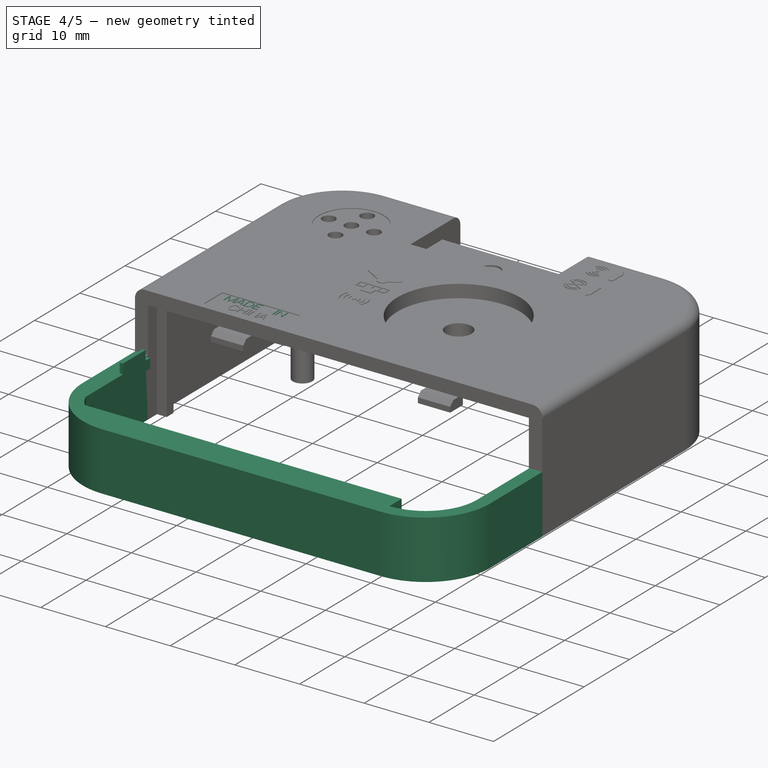
[diagram: stage 4 of 5 — iso view after this stage's code; geometry added in this stage tinted green]
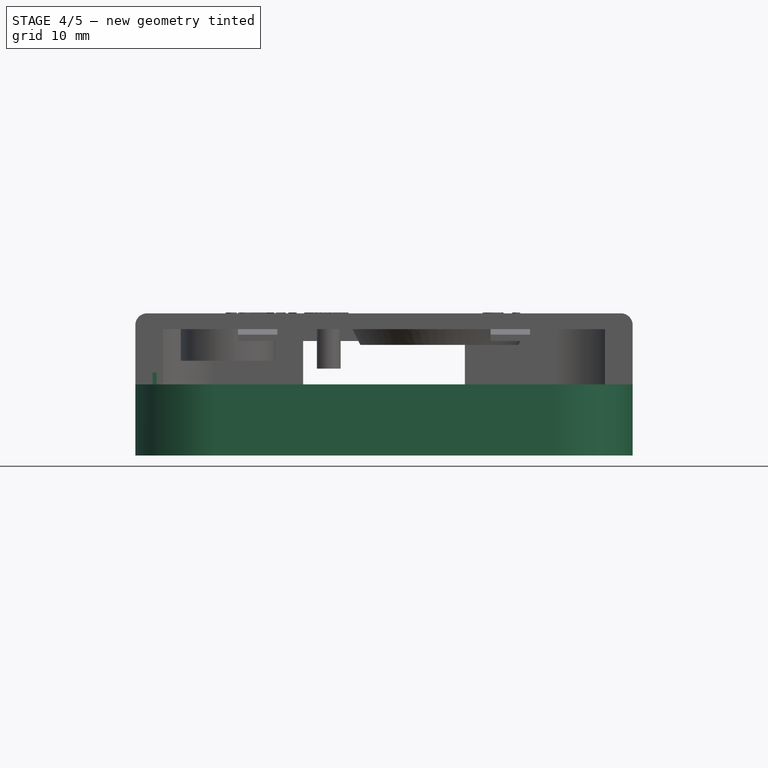
[diagram: stage 4 of 5 — front view after this stage's code; geometry added in this stage tinted green]
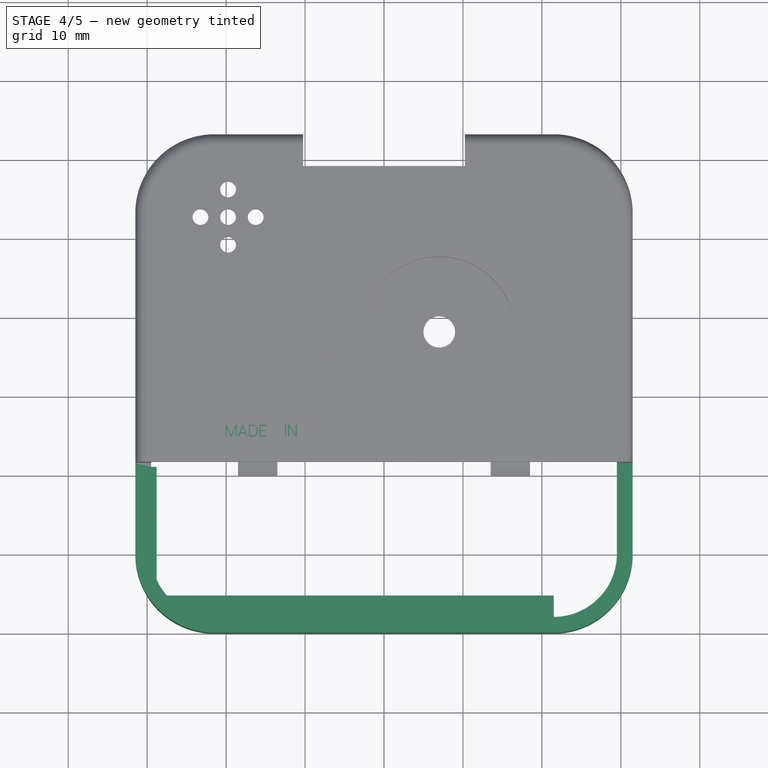
[diagram: stage 4 of 5 — top view after this stage's code; geometry added in this stage tinted green]
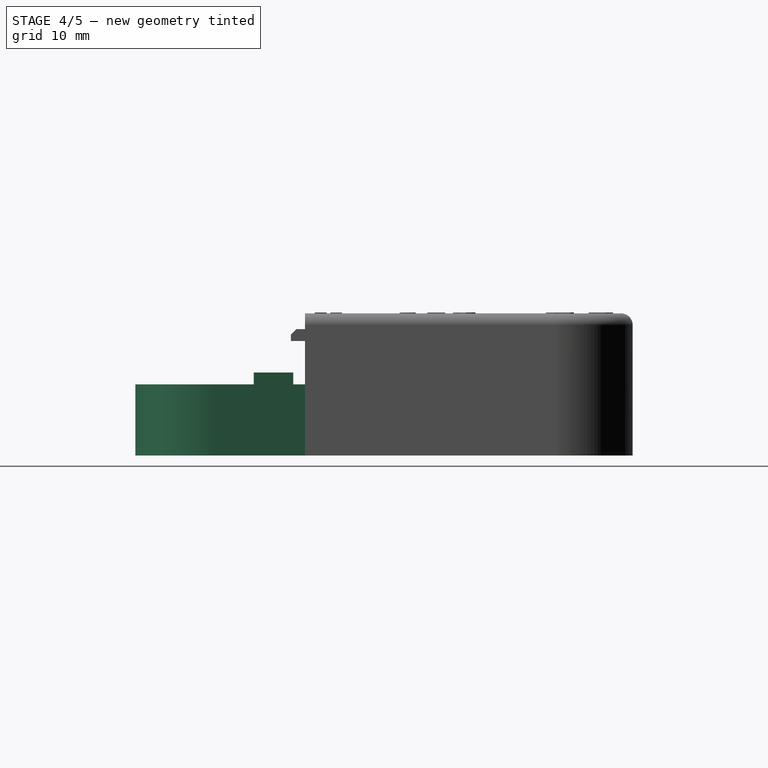
[diagram: stage 4 of 5 — right view after this stage's code; geometry added in this stage tinted green]
FEATURE [Sketcher::SketchObject] Sketch
  FullyConstrained = true
  MapMode = 5
  Support = -> [XY_Plane002]
  sketch-geometry (6):
    g0: ArcOfCircle CenterX=-21.5 CenterY=10 CenterZ=0 NormalX=0 NormalY=0 NormalZ=1 AngleXU=0 Radius=10 StartAngle=3.14159 EndAngle=4.71239
    g1: LineSegment StartX=-31.5 StartY=10 StartZ=0 EndX=-31.5 EndY=21.5 EndZ=0
    g2: LineSegment StartX=-21.5 StartY=7.73603e-11 StartZ=0 EndX=21.5 EndY=7.73603e-11 EndZ=0
    g3: LineSegment StartX=31.5 StartY=21.5 StartZ=0 EndX=31.5 EndY=10 EndZ=0
    g4: ArcOfCircle CenterX=21.5 CenterY=10 CenterZ=0 NormalX=0 NormalY=0 NormalZ=1 AngleXU=0 Radius=10 StartAngle=4.71239 EndAngle=6.28319
    g5: LineSegment StartX=-31.5 StartY=21.5 StartZ=0 EndX=31.5 EndY=21.5 EndZ=0
  constraints (16):
    c: PointOnObject(g0,g-1)
    c: Vertical(g1)
    c: Tangent(g1,g0) = 1.5708
    c: Tangent(g0,g-1)
    c: Coincident(g2,g0)
    c: Radius(g0) = 10
    c: DistanceY(g0,g1) = 21.5
    c: Symmetric(g0,g2,g-2)
    c: Symmetric(g3,g1,g-2)
    c: Symmetric(g3,g0,g-2)
    c: Coincident(g4,g3)
    c: Coincident(g4,g2)
    c: Equal(g4,g0)
    c: DistanceX(g0,g3) = 63
    c: Coincident(g5,g1)
    c: Coincident(g5,g3)
FEATURE [PartDesign::Pad] Pad  label="outline"
  Direction = (1,1,1)
  Length = 9
  Length2 = 100
  Profile = -> Sketch
  Type = 0
FEATURE [Sketcher::SketchObject] Sketch001
  ExternalGeometry = -> [Pad]
  FullyConstrained = true
  MapMode = 5
  Placement = pos=(0,0,9) rot=(0,0,1;0rad)
  Support = -> [Pad]
  sketch-geometry (6):
    g0: LineSegment StartX=-29.5 StartY=21.5 StartZ=0 EndX=-29.5 EndY=10 EndZ=0
    g1: LineSegment StartX=29.5 StartY=21.5 StartZ=0 EndX=29.5 EndY=10 EndZ=0
    g2: LineSegment StartX=21.5 StartY=2 StartZ=0 EndX=-21.5 EndY=2 EndZ=0
    g3: ArcOfCircle CenterX=-21.5 CenterY=10 CenterZ=0 NormalX=0 NormalY=0 NormalZ=1 AngleXU=0 Radius=8 StartAngle=3.14159 EndAngle=4.71238
    g4: ArcOfCircle CenterX=21.5 CenterY=10 CenterZ=0 NormalX=0 NormalY=0 NormalZ=1 AngleXU=0 Radius=8 StartAngle=4.71239 EndAngle=6.28319
    g5: LineSegment StartX=-29.5 StartY=21.5 StartZ=0 EndX=29.5 EndY=21.5 EndZ=0
  constraints (15):
    c: PointOnObject(g0,g-7)
    c: Vertical(g0)
    c: DistanceX(g-7,g0) = 2
    c: Symmetric(g1,g0,g-2)
    c: Symmetric(g1,g0,g-2)
    c: Symmetric(g2,g2,g-2)
    c: Equal(g1,g-6)
    c: Coincident(g3,g-4)
    c: Coincident(g3,g0)
    c: Coincident(g3,g2)
    c: Coincident(g4,g-5)
    c: Coincident(g4,g1)
    c: Coincident(g4,g2)
    c: Coincident(g5,g0)
    c: Coincident(g5,g1)
FEATURE [PartDesign::Pocket] Pocket  label="outer_walls"
  BaseFeature = -> Pad
  Length = 5
  Length2 = 100
  Profile = -> Sketch001
  Type = 1
FEATURE [Sketcher::SketchObject] Sketch002
  ExternalGeometry = -> [Pocket]
  FullyConstrained = true
  MapMode = 5
  Placement = pos=(0,2,0) rot=(0,0.707107,0.707107;3.14159rad)
  Support = -> [Pocket]
  sketch-geometry (4):
    g0: LineSegment StartX=-21.5 StartY=9 StartZ=0 EndX=21.5 EndY=9 EndZ=0
    g1: LineSegment StartX=21.5 StartY=9 StartZ=0 EndX=21.5 EndY=7.5 EndZ=0
    g2: LineSegment StartX=21.5 StartY=7.5 StartZ=0 EndX=-21.5 EndY=7.5 EndZ=0
    g3: LineSegment StartX=-21.5 StartY=7.5 StartZ=0 EndX=-21.5 EndY=9 EndZ=0
  constraints (10):
    c: Coincident(g0,g1)
    c: Coincident(g1,g2)
    c: Coincident(g2,g3)
    c: Coincident(g3,g0)
    c: Horizontal(g2)
    c: Vertical(g1)
    c: Vertical(g3)
    c: Coincident(g0,g-3)
    c: Coincident(g0,g-3)
    c: DistanceY(g1,g1) = 1.5
FEATURE [PartDesign::Pad] Pad001  label="bottom_border"
  BaseFeature = -> Pocket
  Direction = (1,1,1)
  Length = 2.7
  Length2 = 100
  Profile = -> Sketch002
  Type = 0
FEATURE [Sketcher::SketchObject] Sketch003
  ExternalGeometry = -> [Pad001]
  FullyConstrained = true
  MapMode = 5
  Placement = pos=(0,2e-15,9) rot=(0,0,1;0rad)
  Support = -> [Pad001]
  sketch-geometry (5):
    g0: LineSegment StartX=-21.5 StartY=4.7 StartZ=0 EndX=-20.5 EndY=4.7 EndZ=0
    g1: LineSegment StartX=-20.5 StartY=4.7 StartZ=0 EndX=-20.5 EndY=2 EndZ=0
    g2: LineSegment StartX=-20.5 StartY=2 StartZ=0 EndX=-21.5 EndY=2 EndZ=0
    g3: LineSegment StartX=-21.5 StartY=4.7 StartZ=0 EndX=-27.4925 EndY=4.7 EndZ=0
    g4: ArcOfCircle CenterX=-21.5 CenterY=10 CenterZ=0 NormalX=0 NormalY=0 NormalZ=1 AngleXU=0 Radius=8 StartAngle=3.86574 EndAngle=4.71238
  constraints (13):
    c: Coincident(g0,g-5)
    c: PointOnObject(g0,g-5)
    c: Coincident(g1,g0)
    c: PointOnObject(g1,g-6)
    c: Vertical(g1)
    c: Coincident(g2,g1)
    c: Coincident(g2,g-6)
    c: DistanceX(g0,g0) = 1
    c: Coincident(g3,g0)
    c: Horizontal(g3)
    c: Coincident(g4,g-4)
    c: Coincident(g4,g3)
    c: Coincident(g4,g2)
FEATURE [PartDesign::Pad] Pad002  label="bottom_border_2"
  BaseFeature = -> Pad001
  Direction = (1,1,1)
  Length = 1.5
  Length2 = 100
  Profile = -> Sketch003
  Reversed = true
  Type = 0
FEATURE [Sketcher::SketchObject] Sketch004
  ExternalGeometry = -> [Pad002]
  FullyConstrained = true
  MapMode = 5
  Placement = pos=(-29.5,0,0) rot=(0.57735,0.57735,0.57735;2.0944rad)
  Support = -> [Pad002]
  sketch-geometry (4):
    g0: LineSegment StartX=10 StartY=9 StartZ=0 EndX=21 EndY=9 EndZ=0
    g1: LineSegment StartX=21 StartY=9 StartZ=0 EndX=21 EndY=7.5 EndZ=0
    g2: LineSegment StartX=21 StartY=7.5 StartZ=0 EndX=10 EndY=7.5 EndZ=0
    g3: LineSegment StartX=10 StartY=7.5 StartZ=0 EndX=10 EndY=9 EndZ=0
  constraints (11):
    c: Coincident(g0,g1)
    c: Coincident(g1,g2)
    c: Coincident(g2,g3)
    c: Coincident(g3,g0)
    c: Horizontal(g0)
    c: Horizontal(g2)
    c: Vertical(g1)
    c: Vertical(g3)
    c: Coincident(g0,g-4)
    c: DistanceX(g0,g-3) = 0.5
    c: DistanceY(g3,g3) = 1.5
FEATURE [PartDesign::Pad] Pad003  label="left_border"
  BaseFeature = -> Pad002
  Direction = (1,1,1)
  Length = 0.7
  Length2 = 100
  Profile = -> Sketch004
  Type = 0
FEATURE [Sketcher::SketchObject] Sketch005
  ExternalGeometry = -> [Pad003]
  FullyConstrained = true
  MapMode = 5
  Placement = pos=(0,10,0) rot=(1,0,0;1.5708rad)
  Support = -> [Pad003]
  sketch-geometry (4):
    g0: LineSegment StartX=-29.5 StartY=9 StartZ=0 EndX=-28.8 EndY=9 EndZ=0
    g1: LineSegment StartX=-28.8 StartY=9 StartZ=0 EndX=-28.8 EndY=7.5 EndZ=0
    g2: LineSegment StartX=-28.8 StartY=7.5 StartZ=0 EndX=-29.5 EndY=7.5 EndZ=0
    g3: LineSegment StartX=-29.5 StartY=7.5 StartZ=0 EndX=-29.5 EndY=9 EndZ=0
  constraints (10):
    c: Coincident(g0,g1)
    c: Coincident(g1,g2)
    c: Coincident(g2,g3)
    c: Coincident(g3,g0)
    c: Horizontal(g0)
    c: Horizontal(g2)
    c: Vertical(g1)
    c: Vertical(g3)
    c: Coincident(g0,g-3)
    c: Coincident(g1,g-4)
FEATURE [PartDesign::Pad] Pad004  label="left_border_2"
  BaseFeature = -> Pad003
  Direction = (1,1,1)
  Length = 10
  Length2 = 100
  Profile = -> Sketch005
  Type = 3
  UpToFace = -> Pad003 [Face21]
FEATURE [Sketcher::SketchObject] Sketch006
  ExternalGeometry = -> [Pad004]
  FullyConstrained = true
  MapMode = 5
  Placement = pos=(0,0,9) rot=(0,0,1;0rad)
  Support = -> [Pad004]
  sketch-geometry (4):
    g0: LineSegment StartX=-28.8 StartY=20 StartZ=0 EndX=-29.3 EndY=20 EndZ=0
    g1: LineSegment StartX=-29.3 StartY=20 StartZ=0 EndX=-29.3 EndY=15 EndZ=0
    g2: LineSegment StartX=-29.3 StartY=15 StartZ=0 EndX=-28.8 EndY=15 EndZ=0
    g3: LineSegment StartX=-28.8 StartY=15 StartZ=0 EndX=-28.8 EndY=20 EndZ=0
  constraints (12):
    c: Coincident(g0,g1)
    c: Coincident(g1,g2)
    c: Coincident(g2,g3)
    c: Coincident(g3,g0)
    c: Horizontal(g0)
    c: Horizontal(g2)
    c: Vertical(g1)
    c: Vertical(g3)
    c: PointOnObject(g0,g-4)
    c: DistanceY(g1,g1) = 5
    c: DistanceX(g2,g2) = 0.5
    c: DistanceY(g0,g-5) = 1.5
FEATURE [PartDesign::Pad] Pad005  label="left_pin"
  BaseFeature = -> Pad004
  Direction = (1,1,1)
  Length = 1.5
  Length2 = 100
  Profile = -> Sketch006
  Type = 0
FEATURE [Part::Part2DObjectPython] ShapeString  label="MADE"  # Draft 2D object (typed FeaturePython)
  FontFile = <path>
  Placement = pos=(-20.2,24.7,18) rot=(0,0,1;0rad)
  Size = 1.8
  String = MADE
  Tracking = 0
FEATURE [Part::Part2DObjectPython] ShapeString001  label="IN"  # Draft 2D object (typed FeaturePython)
  FontFile = <path>
  Placement = pos=(-12.7,24.7,18) rot=(0,0,1;0rad)
  Size = 1.8
  String = IN
  Tracking = 0
FEATURE [Part::Part2DObjectPython] ShapeString002  label="CHINA"  # Draft 2D object (typed FeaturePython)
  FontFile = <path>
  Placement = pos=(-18.3,22.75,18) rot=(0,0,1;0rad)
  Size = 1.8
  String = CHINA
  Tracking = 0
FEATURE [Part::Extrusion] Extrude
  Base = -> ShapeString
  Dir = (0,0,1)
  DirMode = 0
  FaceMakerClass = Part::FaceMakerBullseye
  LengthFwd = 0.1
  LengthRev = 0
  Solid = false
  Symmetric = false
FEATURE [Part::Extrusion] Extrude001
  Base = -> ShapeString001
  Dir = (0,0,1)
  DirMode = 0
  FaceMakerClass = Part::FaceMakerBullseye
  LengthFwd = 0.1
  LengthRev = 0
  Solid = false
  Symmetric = false
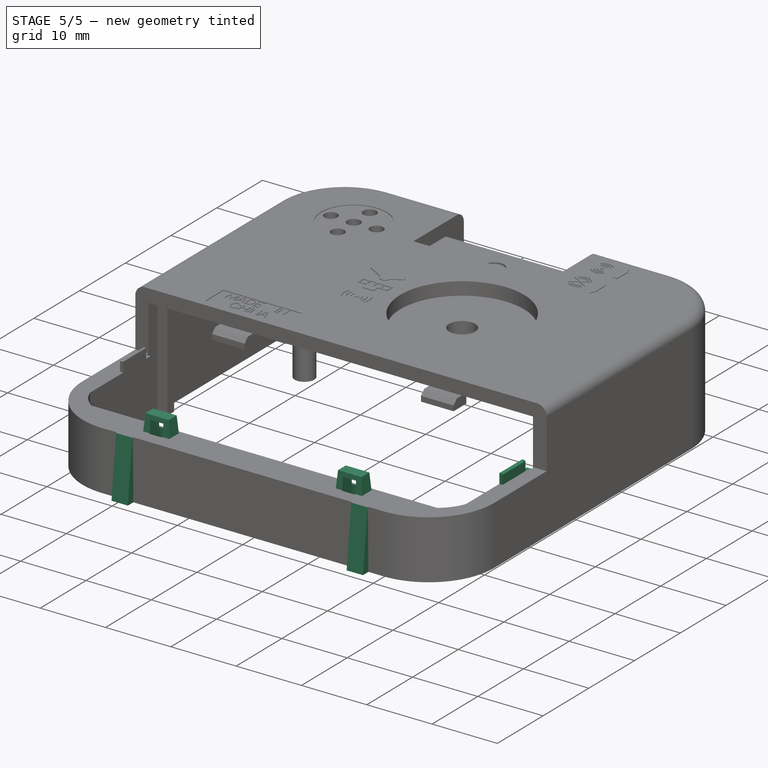
[diagram: stage 5 of 5 — iso view after this stage's code; geometry added in this stage tinted green]
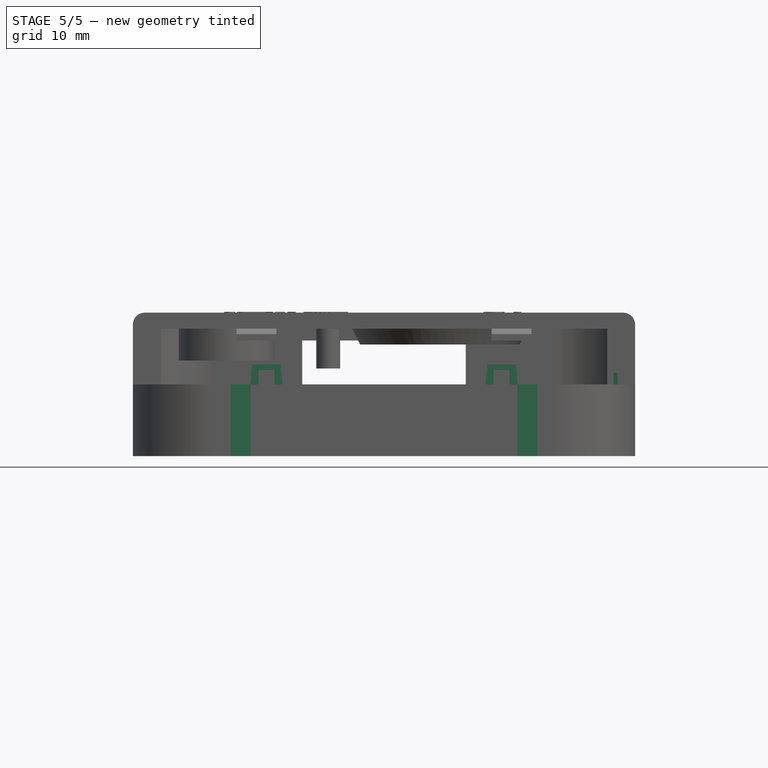
[diagram: stage 5 of 5 — front view after this stage's code; geometry added in this stage tinted green]
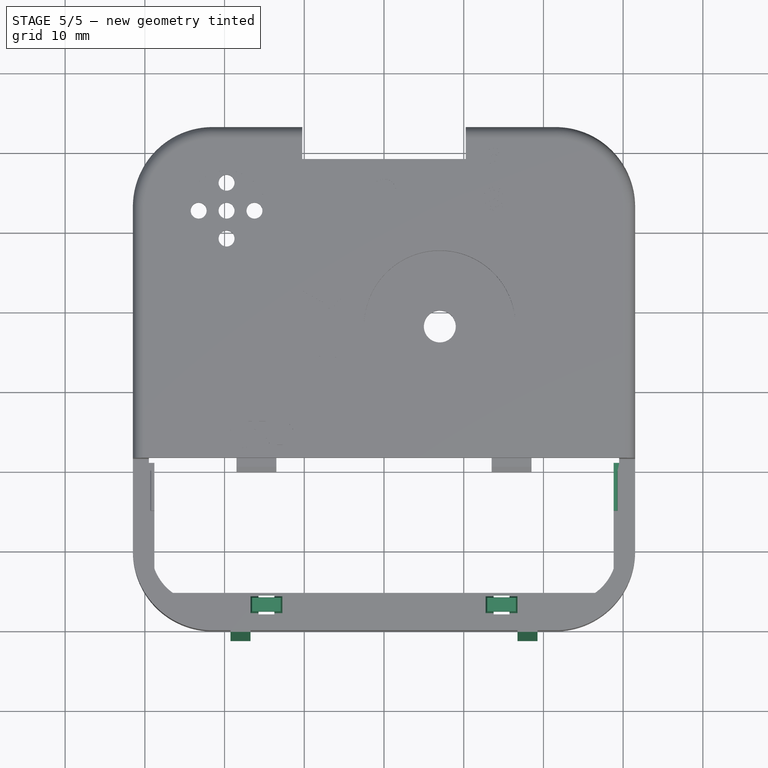
[diagram: stage 5 of 5 — top view after this stage's code; geometry added in this stage tinted green]
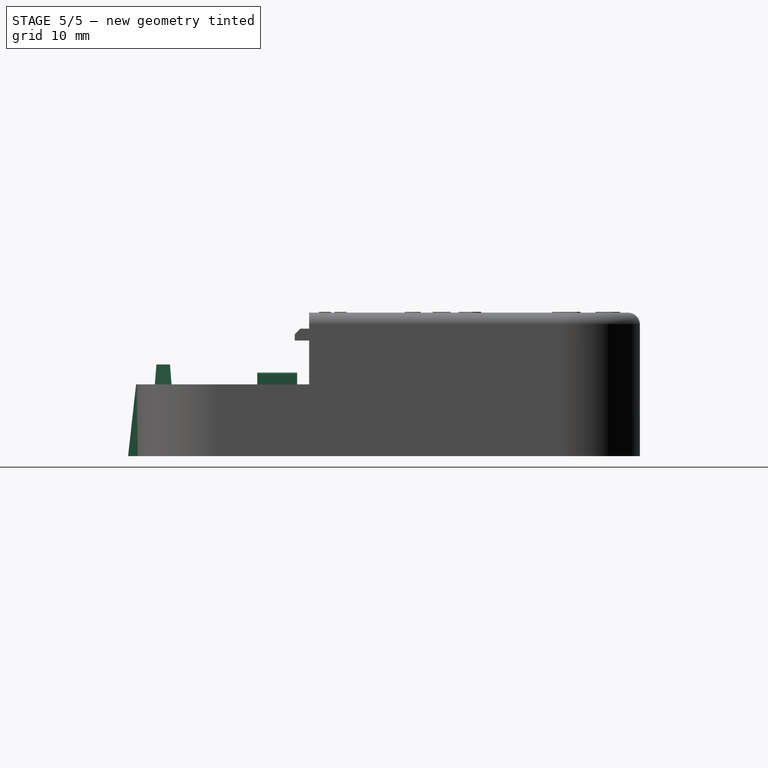
[diagram: stage 5 of 5 — right view after this stage's code; geometry added in this stage tinted green]
FEATURE [Sketcher::SketchObject] Sketch007
  ExternalGeometry = -> [Pad005]
  FullyConstrained = true
  MapMode = 5
  Placement = pos=(0,2e-15,9) rot=(0,0,1;0rad)
  Support = -> [Pad005]
  sketch-geometry (7):
    g0: LineSegment StartX=-15.75 StartY=2 StartZ=0 EndX=-13.75 EndY=2 EndZ=0
    g1: LineSegment StartX=-13.75 StartY=2 StartZ=0 EndX=-13.75 EndY=4.4 EndZ=0
    g2: LineSegment StartX=-13.75 StartY=4.4 StartZ=0 EndX=-15.75 EndY=4.4 EndZ=0
    g3: LineSegment StartX=-15.75 StartY=4.4 StartZ=0 EndX=-15.75 EndY=2 EndZ=0
    g4: LineSegment StartX=-15.75 StartY=4.4 StartZ=0 EndX=-13.75 EndY=2 EndZ=0
    g5: LineSegment StartX=-15.75 StartY=2 StartZ=0 EndX=-13.75 EndY=4.4 EndZ=0
    g6: GeomPoint X=-14.75 Y=3.2 Z=0
  constraints (18):
    c: Coincident(g0,g1)
    c: Coincident(g1,g2)
    c: Coincident(g2,g3)
    c: Coincident(g3,g0)
    c: Horizontal(g0)
    c: Horizontal(g2)
    c: Vertical(g1)
    c: Vertical(g3)
    c: PointOnObject(g0,g-3)
    c: DistanceX(g2,g2) = 2
    c: DistanceY(g2,g-4) = 0.3
    c: Coincident(g4,g2)
    c: Coincident(g4,g0)
    c: Coincident(g5,g0)
    c: Coincident(g5,g1)
    c: PointOnObject(g6,g4)
    c: PointOnObject(g6,g5)
    c: DistanceX(g-5,g6) = 16.75
FEATURE [PartDesign::Pocket] Pocket001  label="bottom_hole"
  BaseFeature = -> Pad005
  Length = 5
  Length2 = 100
  Profile = -> Sketch007
  Type = 1
FEATURE [Sketcher::SketchObject] Sketch008
  ExternalGeometry = -> [Pocket001]
  FullyConstrained = true
  MapMode = 5
  Placement = pos=(0,2e-15,9) rot=(0,0,1;0rad)
  Support = -> [Pocket001]
  sketch-geometry (4):
    g0: LineSegment StartX=-16.75 StartY=4.25 StartZ=0 EndX=-12.75 EndY=4.25 EndZ=0
    g1: LineSegment StartX=-12.75 StartY=4.25 StartZ=0 EndX=-12.75 EndY=2.15 EndZ=0
    g2: LineSegment StartX=-12.75 StartY=2.15 StartZ=0 EndX=-16.75 EndY=2.15 EndZ=0
    g3: LineSegment StartX=-16.75 StartY=2.15 StartZ=0 EndX=-16.75 EndY=4.25 EndZ=0
  constraints (12):
    c: Coincident(g0,g1)
    c: Coincident(g1,g2)
    c: Coincident(g2,g3)
    c: Coincident(g3,g0)
    c: Horizontal(g0)
    c: Horizontal(g2)
    c: Vertical(g1)
    c: Vertical(g3)
    c: DistanceX(g0,g-3) = 1
    c: DistanceY(g0,g-3) = 0.15
    c: DistanceX(g-3,g0) = 1
    c: DistanceY(g-4,g1) = 0.15
FEATURE [Sketcher::SketchObject] Sketch009
  AttachmentOffset = pos=(0,0,2.5) rot=(0,0,1;0rad)
  ExternalGeometry = -> [Sketch008]
  FullyConstrained = true
  MapMode = 5
  Placement = pos=(0,2.5e-15,11.5) rot=(0,0,1;0rad)
  Support = -> [Pocket001]
  sketch-geometry (4):
    g0: LineSegment StartX=-16.55 StartY=4.05 StartZ=0 EndX=-12.95 EndY=4.05 EndZ=0
    g1: LineSegment StartX=-12.95 StartY=4.05 StartZ=0 EndX=-12.95 EndY=2.35 EndZ=0
    g2: LineSegment StartX=-12.95 StartY=2.35 StartZ=0 EndX=-16.55 EndY=2.35 EndZ=0
    g3: LineSegment StartX=-16.55 StartY=2.35 StartZ=0 EndX=-16.55 EndY=4.05 EndZ=0
  constraints (12):
    c: Coincident(g0,g1)
    c: Coincident(g1,g2)
    c: Coincident(g2,g3)
    c: Coincident(g3,g0)
    c: Horizontal(g0)
    c: Horizontal(g2)
    c: Vertical(g1)
    c: Vertical(g3)
    c: DistanceX(g-3,g0) = 0.2
    c: DistanceX(g0,g-3) = 0.2
    c: DistanceY(g-4,g1) = 0.2
    c: DistanceY(g0,g-3) = 0.2
FEATURE [PartDesign::AdditiveLoft] AdditiveLoft  label="bottom_pin"
  BaseFeature = -> Pocket001
  Closed = false
  Profile = -> Sketch008
  Ruled = false
  Sections = -> [Sketch009]
FEATURE [Sketcher::SketchObject] Sketch010
  AttachmentOffset = pos=(0,0,0) rot=(1,0,0;0.079762rad)
  ExternalGeometry = -> [AdditiveLoft]
  FullyConstrained = true
  MapMode = 5
  Placement = pos=(0,1.42091,-0.113672) rot=(1,0,0;1.57073rad)
  Support = -> [AdditiveLoft]
  sketch-geometry (4):
    g0: LineSegment StartX=-15.75 StartY=10.9137 StartZ=0 EndX=-13.75 EndY=10.9137 EndZ=0
    g1: LineSegment StartX=-13.75 StartY=10.9137 StartZ=0 EndX=-13.75 EndY=9.11371 EndZ=0
    g2: LineSegment StartX=-13.75 StartY=9.11371 StartZ=0 EndX=-15.75 EndY=9.11371 EndZ=0
    g3: LineSegment StartX=-15.75 StartY=9.11371 StartZ=0 EndX=-15.75 EndY=10.9137 EndZ=0
  constraints (10):
    c: Coincident(g0,g1)
    c: Coincident(g1,g2)
    c: Coincident(g2,g3)
    c: Coincident(g3,g0)
    c: Horizontal(g0)
    c: Vertical(g1)
    c: Vertical(g3)
    c: DistanceY(g0,g-3) = 0.7
    c: Coincident(g2,g-4)
    c: Coincident(g1,g-4)
FEATURE [PartDesign::Pocket] Pocket002  label="bottom_pin_hole"
  BaseFeature = -> AdditiveLoft
  Length = 5
  Length2 = 100
  Profile = -> Sketch010
  Type = 1
FEATURE [Sketcher::SketchObject] Sketch011
  ExternalGeometry = -> [Pocket002]
  FullyConstrained = true
  MapMode = 5
  Placement = pos=(0,7.73603e-11,0) rot=(1,0,0;1.5708rad)
  Support = -> [Pocket002]
  sketch-geometry (4):
    g0: LineSegment StartX=-16.75 StartY=9 StartZ=0 EndX=-19.25 EndY=9 EndZ=0
    g1: LineSegment StartX=-19.25 StartY=9 StartZ=0 EndX=-19.25 EndY=0 EndZ=0
    g2: LineSegment StartX=-19.25 StartY=0 StartZ=0 EndX=-16.75 EndY=0 EndZ=0
    g3: LineSegment StartX=-16.75 StartY=0 StartZ=0 EndX=-16.75 EndY=9 EndZ=0
  constraints (11):
    c: Coincident(g0,g1)
    c: Coincident(g1,g2)
    c: Coincident(g2,g3)
    c: Coincident(g3,g0)
    c: Horizontal(g0)
    c: Horizontal(g2)
    c: Vertical(g1)
    c: Vertical(g3)
    c: Coincident(g0,g-4)
    c: PointOnObject(g1,g-3)
    c: DistanceX(g0,g0) = 2.5
FEATURE [PartDesign::Pad] Pad006  label="left_foot"
  BaseFeature = -> Pocket002
  Direction = (1,1,1)
  Length = 2
  Length2 = 100
  Profile = -> Sketch011
  Type = 0
FEATURE [Sketcher::SketchObject] Sketch012
  ExternalGeometry = -> [Pad006]
  FullyConstrained = true
  MapMode = 5
  Placement = pos=(-19.25,0,0) rot=(0.57735,-0.57735,-0.57735;2.0944rad)
  Support = -> [Pad006]
  expr: Constraints[9] = atan(2 / 18)
  sketch-geometry (4):
    g0: LineSegment StartX=0.2 StartY=9 StartZ=0 EndX=1.2 EndY=0 EndZ=0
    g1: LineSegment StartX=1.2 StartY=0 StartZ=0 EndX=2 EndY=4e-16 EndZ=0
    g2: LineSegment StartX=2 StartY=4e-16 StartZ=0 EndX=2 EndY=9 EndZ=0
    g3: LineSegment StartX=2 StartY=9 StartZ=0 EndX=0.2 EndY=9 EndZ=0
  constraints (10):
    c: PointOnObject(g0,g-5)
    c: PointOnObject(g0,g-4)
    c: Coincident(g1,g0)
    c: Coincident(g1,g-4)
    c: Coincident(g2,g1)
    c: Coincident(g2,g-5)
    c: Coincident(g3,g2)
    c: Coincident(g3,g0)
    c: DistanceX(g-5,g0) = 0.2
    c: Angle(g2,g0) = 0.110657
FEATURE [PartDesign::Pocket] Pocket003  label="left_foot_angle"
  BaseFeature = -> Pad006
  Length = 5
  Length2 = 100
  Profile = -> Sketch012
  Type = 1
FEATURE [Sketcher::SketchObject] Sketch013
  ExternalGeometry = -> [Pocket003]
  FullyConstrained = true
  MapMode = 5
  Placement = pos=(0,0,9) rot=(0,0,1;0rad)
  Support = -> [Pocket003]
  sketch-geometry (4):
    g0: LineSegment StartX=-26.4925 StartY=4.7 StartZ=0 EndX=-27.4925 EndY=4.7 EndZ=0
    g1: LineSegment StartX=-27.4925 StartY=4.7 StartZ=0 EndX=-28.8 EndY=4.7 EndZ=0
    g2: LineSegment StartX=-28.8 StartY=4.7 StartZ=0 EndX=-28.8 EndY=7.72739 EndZ=0
    g3: ArcOfCircle CenterX=-22.6787 CenterY=10 CenterZ=0 NormalX=0 NormalY=0 NormalZ=1 AngleXU=0 Radius=6.52954 StartAngle=3.49708 EndAngle=4.08864
  constraints (12):
    c: PointOnObject(g0,g-5)
    c: Coincident(g0,g-5)
    c: Coincident(g1,g0)
    c: Horizontal(g1)
    c: Coincident(g2,g1)
    c: PointOnObject(g2,g-3)
    c: Vertical(g2)
    c: DistanceY(g-4,g2) = 1
    c: DistanceX(g0,g0) = 1
    c: Coincident(g3,g2)
    c: Coincident(g3,g0)
    c: DistanceY(g-4,g3) = 0
FEATURE [PartDesign::Pad] Pad007  label="corner_border"
  BaseFeature = -> Pocket003
  Direction = (1,1,1)
  Length = 1.5
  Length2 = 100
  Profile = -> Sketch013
  Reversed = true
  Type = 0
FEATURE [PartDesign::Fillet] Fillet  label="left_pin_fillet"
  Base = -> Pad007 [Edge128]
  BaseFeature = -> Pad007
  Radius = 0.2
  SupportTransform = false
FEATURE [PartDesign::Mirrored] Mirrored
  BaseFeature = -> Fillet
  MirrorPlane = -> YZ_Plane002
  Originals = -> [Pad002,Pad003,Pad004,Pad005,Pocket001,AdditiveLoft,Pocket002,Pad006,Pocket003,Pad007,Fillet]
FEATURE [PartDesign::Point] DatumPoint
  AttacherType = Attacher::AttachEnginePoint
  MapMode = 37
  Placement = pos=(0,52,16) rot=(0,0,1;0rad)
  Support = -> [Fillet001]
FEATURE [PartDesign::Body] Body  label="top_body"
  BaseFeature = -> Thickness
  Group = -> [BaseFeature,Sketch015,Pocket004,Sketch016,Pad009,Sketch017,Pad010,Sketch018,Pocket005,Sketch019,Pad011,Sketch020,Pad012,Chamfer,Sketch021,Pad013,Sketch022,Pad014,Mirrored001,Sketch023,Pocket006,Sketch024,Pad015,Sketch025,Pocket007,Sketch026,Pad016,Sketch028,Sketch029,AdditiveLoft001,Sketch030,Pocket008,Sketch031,Pocket009,Sketch032,Pocket010,Sketch033,Pad017,Sketch034,Pad018,Sketch035,Pad019,+4 more]
  Origin = -> Origin001
  Tip = -> Fillet001
FEATURE [Part::MultiFuse] Fusion
  Refine = true
  Shapes = -> [Extrude002,Extrude001,Extrude,Body,Body001]
FEATURE [PartDesign::CoordinateSystem] LCS_wheel_rest
  AttacherType = Attacher::AttachEngine3D
  MapMode = 11
  Placement = pos=(7,38,16) rot=(0,0,1;1.5708rad)
  Support = -> [Fusion]
FEATURE [PartDesign::CoordinateSystem] LCS_alarm_button_edge
  AttacherType = Attacher::AttachEngine3D
  MapMode = 1
  Placement = pos=(0,52,16) rot=(0.57735,0.57735,0.57735;2.0944rad)
  Support = -> [DatumPoint]
FEATURE [App::Part] Part  label="battery_body_part"
  Group = -> [Body001,Sketch014,Pad008,Thickness,Body,ShapeString,Extrude,ShapeString001,Extrude001,ShapeString002,Extrude002,Fusion,LCS_wheel_rest,LCS_alarm_button_edge]
  Origin = -> Origin
note: 3 file-system paths scrubbed to <path> (originals preserved in the JSON sidecar)
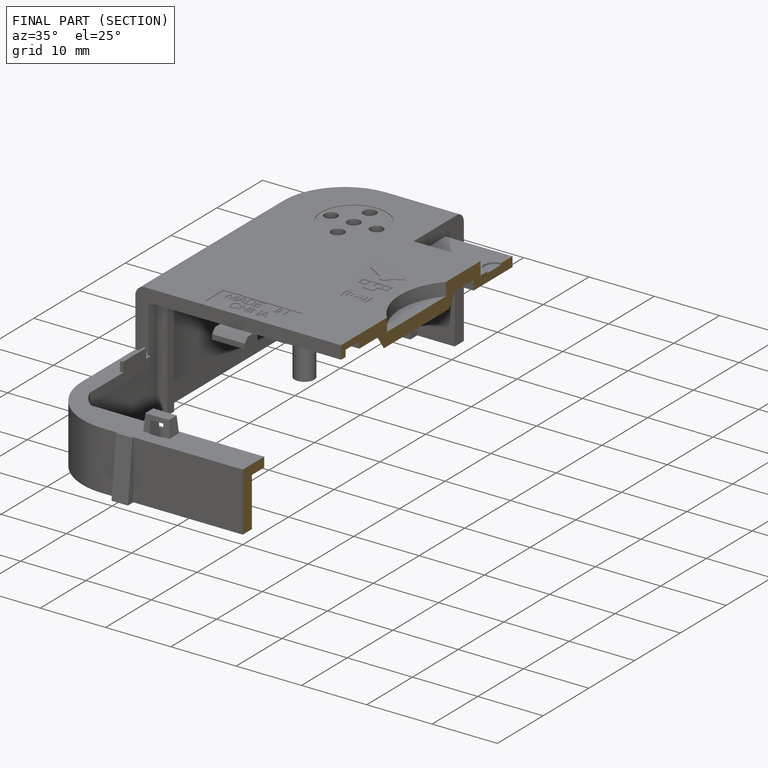
[diagram: finished part — half-section view (interior)]
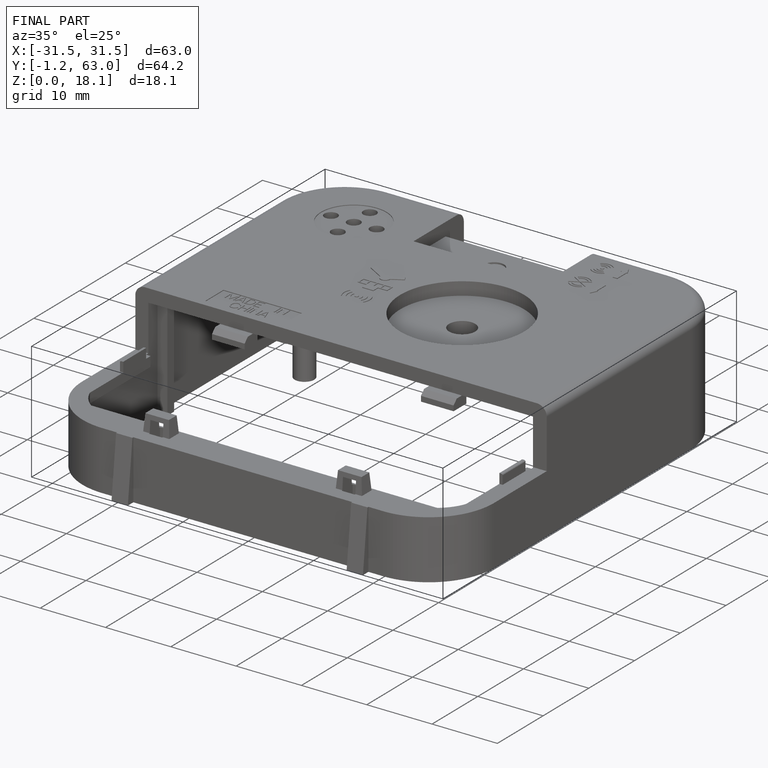
[diagram: finished part — iso view with bounding-box wireframe]
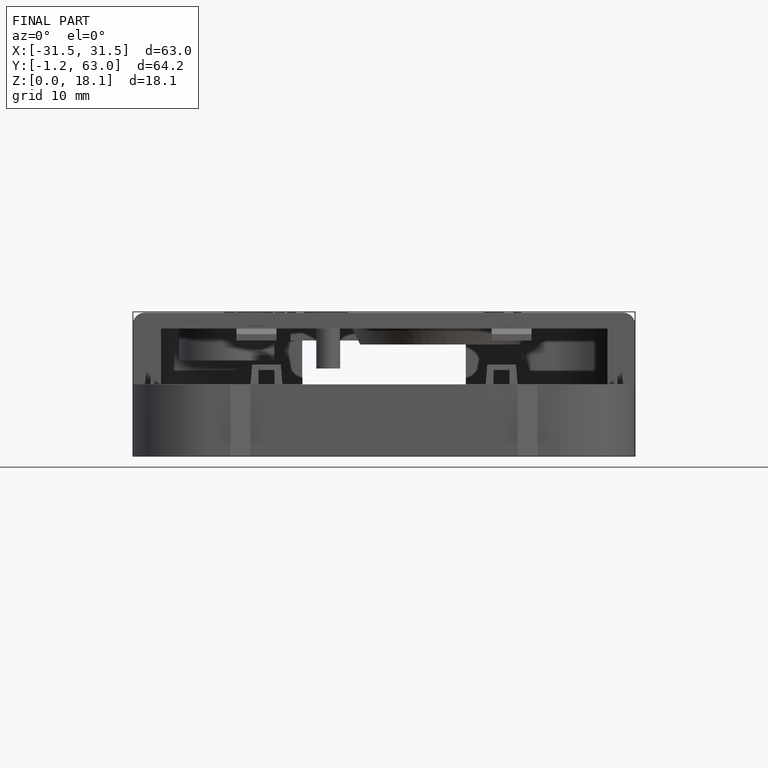
[diagram: finished part — front view with bounding-box wireframe]
